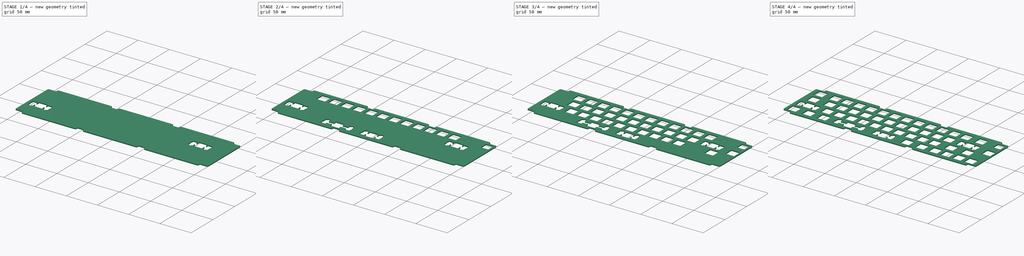
[diagram: build sequence overview — one tinted view per stage of 4, left to right]
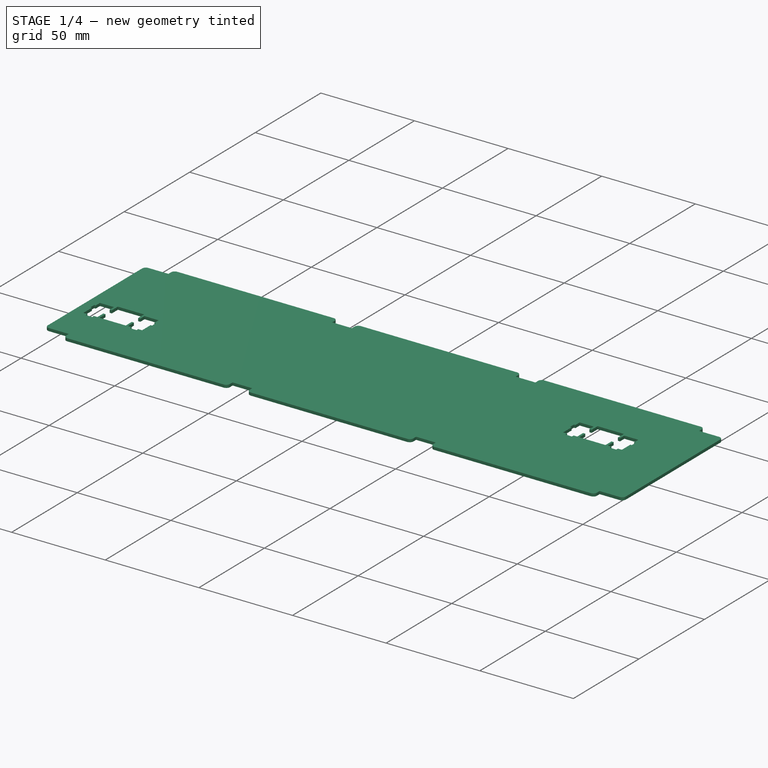
[diagram: stage 1 of 4 — iso view after this stage's code; geometry added in this stage tinted green]
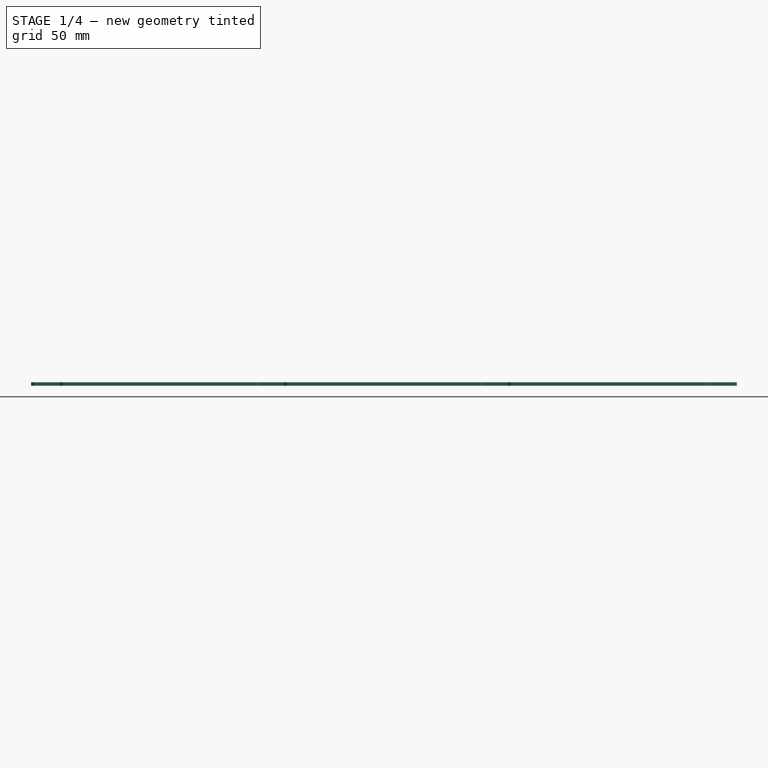
[diagram: stage 1 of 4 — front view after this stage's code; geometry added in this stage tinted green]
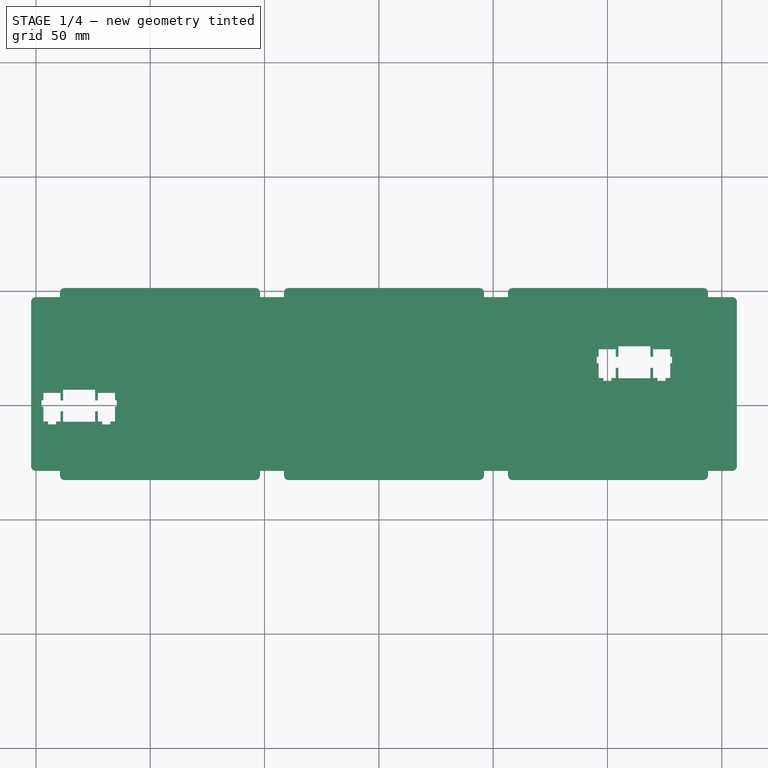
[diagram: stage 1 of 4 — top view after this stage's code; geometry added in this stage tinted green]
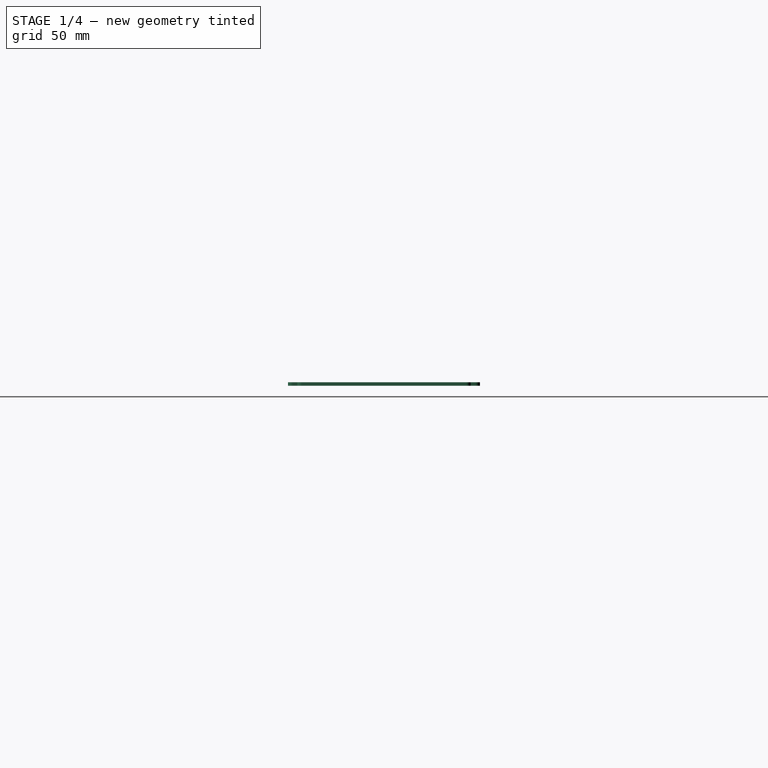
[diagram: stage 1 of 4 — right view after this stage's code; geometry added in this stage tinted green]
FCSTD DOCUMENT  (FreeCAD 0.20R29177 (Git))
Label: ts52k-plate
License: All rights reserved
LicenseURL: http://en.wikipedia.org/wiki/All_rights_reserved
objects: Sketcher::SketchObject×13, PartDesign::Pocket×10, PartDesign::Pad×1, PartDesign::Body×1
note: 36 computed .brp shape members not serialized (recipe doc carries the construction recipe); baked Part::Feature solids carry a one-line shape summary decoded from their .brp

FEATURE [Sketcher::SketchObject] Sketch  label="3u_hole"
  FullyConstrained = false
  MapMode = 5
  Support = -> [XY_Plane]
  sketch-geometry (37):
    g0: LineSegment StartX=-15.7163 StartY=7.54063 StartZ=0 EndX=-16.51 EndY=7.54063 EndZ=0
    g1: LineSegment StartX=-16.51 StartY=7.54063 StartZ=0 EndX=-16.51 EndY=4.68313 EndZ=0
    g2: LineSegment StartX=-16.51 StartY=4.68313 StartZ=0 EndX=-15.7163 EndY=4.68313 EndZ=0
    g3: LineSegment StartX=-15.7163 StartY=4.68313 StartZ=0 EndX=-15.7163 EndY=1.42875 EndZ=0
    g4: LineSegment StartX=-15.7163 StartY=1.42875 StartZ=0 EndX=-8.41375 EndY=1.42875 EndZ=0
    g5: LineSegment StartX=-8.41375 StartY=1.42875 StartZ=0 EndX=-8.41375 EndY=4.60375 EndZ=0
    g6: LineSegment StartX=-8.41375 StartY=4.60375 StartZ=0 EndX=0 EndY=4.60375 EndZ=0
    g7: LineSegment StartX=-4e-16 StartY=4.60375 StartZ=0 EndX=-4e-16 EndY=0 EndZ=0
    g8: LineSegment StartX=-4e-16 StartY=0 StartZ=0 EndX=14 EndY=0 EndZ=0
    g9: LineSegment StartX=14 StartY=0 StartZ=0 EndX=14 EndY=4.60375 EndZ=0
    g10: LineSegment StartX=14 StartY=4.60375 StartZ=0 EndX=22.4137 EndY=4.60375 EndZ=0
    g11: LineSegment StartX=22.4137 StartY=4.60375 StartZ=0 EndX=22.4137 EndY=1.42875 EndZ=0
    g12: LineSegment StartX=22.4137 StartY=1.42875 StartZ=0 EndX=29.7162 EndY=1.42875 EndZ=0
    g13: LineSegment StartX=29.7162 StartY=1.42875 StartZ=0 EndX=29.7162 EndY=4.68313 EndZ=0
    g14: LineSegment StartX=29.7162 StartY=4.68313 StartZ=0 EndX=30.51 EndY=4.68312 EndZ=0
    g15: LineSegment StartX=30.51 StartY=4.68312 StartZ=0 EndX=30.51 EndY=7.54062 EndZ=0
    g16: LineSegment StartX=30.51 StartY=7.54062 StartZ=0 EndX=29.7162 EndY=7.54063 EndZ=0
    g17: LineSegment StartX=29.7162 StartY=7.54063 StartZ=0 EndX=29.7162 EndY=13.8112 EndZ=0
    g18: LineSegment StartX=29.7162 StartY=13.8112 StartZ=0 EndX=27.8112 EndY=13.8112 EndZ=0
    g19: LineSegment StartX=27.8112 StartY=13.8112 StartZ=0 EndX=27.8112 EndY=15.0812 EndZ=0
    g20: LineSegment StartX=27.8112 StartY=15.0812 StartZ=0 EndX=24.3187 EndY=15.0812 EndZ=0
    g21: LineSegment StartX=24.3187 StartY=15.0812 StartZ=0 EndX=24.3187 EndY=13.8112 EndZ=0
    g22: LineSegment StartX=24.3187 StartY=13.8112 StartZ=0 EndX=22.4138 EndY=13.8112 EndZ=0
    g23: LineSegment StartX=22.4138 StartY=13.8112 StartZ=0 EndX=22.4138 EndY=9.36625 EndZ=0
    g24: LineSegment StartX=22.4138 StartY=9.36625 StartZ=0 EndX=14 EndY=9.36625 EndZ=0
    g25: LineSegment StartX=14 StartY=9.36625 StartZ=0 EndX=14 EndY=14 EndZ=0
    g26: LineSegment StartX=14 StartY=14 StartZ=0 EndX=0 EndY=14 EndZ=0
    g27: LineSegment StartX=0 StartY=14 StartZ=0 EndX=0 EndY=9.36625 EndZ=0
    g28: LineSegment StartX=0 StartY=9.36625 StartZ=0 EndX=-8.41375 EndY=9.36625 EndZ=0
    g29: LineSegment StartX=-8.41375 StartY=9.36625 StartZ=0 EndX=-8.41375 EndY=13.8112 EndZ=0
    g30: LineSegment StartX=-8.41375 StartY=13.8112 StartZ=0 EndX=-10.3187 EndY=13.8112 EndZ=0
    g31: LineSegment StartX=-10.3187 StartY=13.8112 StartZ=0 EndX=-10.3187 EndY=15.0812 EndZ=0
    g32: LineSegment StartX=-10.3187 StartY=15.0812 StartZ=0 EndX=-13.8112 EndY=15.0812 EndZ=0
    g33: LineSegment StartX=-13.8112 StartY=15.0812 StartZ=0 EndX=-13.8112 EndY=13.8112 EndZ=0
    g34: LineSegment StartX=-13.8112 StartY=13.8112 StartZ=0 EndX=-15.7163 EndY=13.8112 EndZ=0
    g35: LineSegment StartX=-15.7163 StartY=13.8112 StartZ=0 EndX=-15.7163 EndY=7.54063 EndZ=0
    g36: LineSegment StartX=7 StartY=21.0318 StartZ=0 EndX=7 EndY=-1.86286 EndZ=0
  constraints (92):
    c: Horizontal(g0)
    c: Coincident(g0,g1)
    c: Vertical(g1)
    c: Coincident(g1,g2)
    c: Horizontal(g2)
    c: Coincident(g2,g3)
    c: Vertical(g3)
    c: Coincident(g3,g4)
    c: Horizontal(g4)
    c: Coincident(g4,g5)
    c: Vertical(g5)
    c: Coincident(g5,g6)
    c: Horizontal(g6)
    c: Coincident(g6,g7)
    c: Vertical(g7)
    c: Coincident(g7,g8)
    c: Coincident(g8,g9)
    c: Coincident(g9,g10)
    c: Coincident(g10,g11)
    c: Coincident(g11,g12)
    c: Coincident(g12,g13)
    c: Coincident(g13,g14)
    c: Coincident(g14,g15)
    c: Coincident(g15,g16)
    c: Coincident(g16,g17)
    c: Coincident(g17,g18)
    c: Coincident(g18,g19)
    c: Coincident(g19,g20)
    c: Coincident(g20,g21)
    c: Coincident(g21,g22)
    c: Coincident(g22,g23)
    c: Coincident(g23,g24)
    c: Coincident(g24,g25)
    c: Coincident(g25,g26)
    c: Coincident(g26,g27)
    c: Vertical(g27)
    c: Coincident(g27,g28)
    c: Horizontal(g28)
    c: Coincident(g28,g29)
    c: Vertical(g29)
    c: Coincident(g29,g30)
    c: Horizontal(g30)
    c: Coincident(g30,g31)
    c: Vertical(g31)
    c: Coincident(g31,g32)
    c: Horizontal(g32)
    c: Coincident(g32,g33)
    c: Vertical(g33)
    c: Coincident(g33,g34)
    c: Horizontal(g34)
    c: Coincident(g34,g35)
    c: Coincident(g35,g0)
    c: Vertical(g35)
    c: Vertical(g36)
    c: DistanceX(g-1,g36) = 7
    c: Symmetric(g12,g3,g36)
    c: Symmetric(g34,g17,g36)
    c: Symmetric(g0,g15,g36)
    c: Symmetric(g1,g14,g36)
    c: Symmetric(g18,g33,g36)
    c: Symmetric(g32,g19,g36)
    c: Symmetric(g31,g20,g36)
    c: Symmetric(g30,g21,g36)
    c: Symmetric(g29,g22,g36)
    c: Symmetric(g26,g25,g36)
    c: Symmetric(g27,g24,g36)
    c: Symmetric(g28,g23,g36)
    c: Symmetric(g0,g16,g36)
    c: Symmetric(g2,g13,g36)
    c: Symmetric(g4,g11,g36)
    c: Symmetric(g6,g9,g36)
    c: Symmetric(g7,g8,g36)
    c: DistanceX(g2,g0) = 0
    c: DistanceX(g28,g5) = 0
    c: DistanceX(g6,g27) = 0
    c: DistanceX(g26,g25) = 14
    c: DistanceY(g8,g25) = 14
    c: Symmetric(g10,g5,g36)
    c: DistanceY(g30,g33) = 0
    c: DistanceX(g3,g4) = 7.3025
    c: DistanceX(g5,g6) = 8.41375
    c: DistanceX(g1,g2) = 0.79375
    c: DistanceY(g4,g29) = 12.3825
    c: DistanceY(g30,g31) = 1.27
    c: DistanceX(g32,g31) = 3.4925
    c: DistanceX(g30,g29) = 1.905
    c: DistanceY(g4,g5) = 3.175
    c: DistanceY(g28,g29) = 4.445
    c: DistanceY(g7,g6) = 4.60375
    c: DistanceY(g3,g2) = 3.25438
    c: DistanceY(g1,g0) = 2.8575
    c: DistanceY(g7,g-1) = 0
FEATURE [Sketcher::SketchObject] Sketch001  label="2u_hole"
  FullyConstrained = false
  MapMode = 5
  Support = -> [XY_Plane]
  sketch-geometry (37):
    g0: LineSegment StartX=-8.5725 StartY=7.54063 StartZ=0 EndX=-9.36625 EndY=7.54063 EndZ=0
    g1: LineSegment StartX=-9.36625 StartY=7.54063 StartZ=0 EndX=-9.36625 EndY=4.68313 EndZ=0
    g2: LineSegment StartX=-9.36625 StartY=4.68313 StartZ=0 EndX=-8.5725 EndY=4.68313 EndZ=0
    g3: LineSegment StartX=-8.5725 StartY=4.68313 StartZ=0 EndX=-8.5725 EndY=1.42875 EndZ=0
    g4: LineSegment StartX=-8.5725 StartY=1.42875 StartZ=0 EndX=-1.27 EndY=1.42875 EndZ=0
    g5: LineSegment StartX=-1.27 StartY=1.42875 StartZ=0 EndX=-1.27 EndY=4.60375 EndZ=0
    g6: LineSegment StartX=-1.27 StartY=4.60375 StartZ=0 EndX=-4e-16 EndY=4.60375 EndZ=0
    g7: LineSegment StartX=-4e-16 StartY=4.60375 StartZ=0 EndX=-4e-16 EndY=0 EndZ=0
    g8: LineSegment StartX=-4e-16 StartY=0 StartZ=0 EndX=14 EndY=0 EndZ=0
    g9: LineSegment StartX=14 StartY=0 StartZ=0 EndX=14 EndY=4.60375 EndZ=0
    g10: LineSegment StartX=14 StartY=4.60375 StartZ=0 EndX=15.27 EndY=4.60375 EndZ=0
    g11: LineSegment StartX=15.27 StartY=4.60375 StartZ=0 EndX=15.27 EndY=1.42875 EndZ=0
    g12: LineSegment StartX=15.27 StartY=1.42875 StartZ=0 EndX=22.5725 EndY=1.42875 EndZ=0
    g13: LineSegment StartX=22.5725 StartY=1.42875 StartZ=0 EndX=22.5725 EndY=4.68313 EndZ=0
    g14: LineSegment StartX=22.5725 StartY=4.68313 StartZ=0 EndX=23.3663 EndY=4.68313 EndZ=0
    g15: LineSegment StartX=23.3663 StartY=4.68313 StartZ=0 EndX=23.3663 EndY=7.54063 EndZ=0
    g16: LineSegment StartX=23.3663 StartY=7.54063 StartZ=0 EndX=22.5725 EndY=7.54063 EndZ=0
    g17: LineSegment StartX=22.5725 StartY=7.54063 StartZ=0 EndX=22.5725 EndY=13.8112 EndZ=0
    g18: LineSegment StartX=22.5725 StartY=13.8112 StartZ=0 EndX=20.6675 EndY=13.8112 EndZ=0
    g19: LineSegment StartX=20.6675 StartY=13.8112 StartZ=0 EndX=20.6675 EndY=15.0813 EndZ=0
    g20: LineSegment StartX=20.6675 StartY=15.0813 StartZ=0 EndX=17.175 EndY=15.0813 EndZ=0
    g21: LineSegment StartX=17.175 StartY=15.0813 StartZ=0 EndX=17.175 EndY=13.8112 EndZ=0
    g22: LineSegment StartX=17.175 StartY=13.8112 StartZ=0 EndX=15.27 EndY=13.8112 EndZ=0
    g23: LineSegment StartX=15.27 StartY=13.8112 StartZ=0 EndX=15.27 EndY=9.36625 EndZ=0
    g24: LineSegment StartX=15.27 StartY=9.36625 StartZ=0 EndX=14 EndY=9.36625 EndZ=0
    g25: LineSegment StartX=14 StartY=9.36625 StartZ=0 EndX=14 EndY=14 EndZ=0
    g26: LineSegment StartX=14 StartY=14 StartZ=0 EndX=0 EndY=14 EndZ=0
    g27: LineSegment StartX=0 StartY=14 StartZ=0 EndX=0 EndY=9.36625 EndZ=0
    g28: LineSegment StartX=0 StartY=9.36625 StartZ=0 EndX=-1.27 EndY=9.36625 EndZ=0
    g29: LineSegment StartX=-1.27 StartY=9.36625 StartZ=0 EndX=-1.27 EndY=13.8112 EndZ=0
    g30: LineSegment StartX=-1.27 StartY=13.8112 StartZ=0 EndX=-3.175 EndY=13.8112 EndZ=0
    g31: LineSegment StartX=-3.175 StartY=13.8112 StartZ=0 EndX=-3.175 EndY=15.0813 EndZ=0
    g32: LineSegment StartX=-3.175 StartY=15.0813 StartZ=0 EndX=-6.6675 EndY=15.0813 EndZ=0
    g33: LineSegment StartX=-6.6675 StartY=15.0813 StartZ=0 EndX=-6.6675 EndY=13.8112 EndZ=0
    g34: LineSegment StartX=-6.6675 StartY=13.8112 StartZ=0 EndX=-8.5725 EndY=13.8112 EndZ=0
    g35: LineSegment StartX=-8.5725 StartY=13.8112 StartZ=0 EndX=-8.5725 EndY=7.54063 EndZ=0
    g36: LineSegment StartX=7 StartY=21.0339 StartZ=0 EndX=7 EndY=-1.86497 EndZ=0
  constraints (92):
    c: Horizontal(g0)
    c: Coincident(g0,g1)
    c: Vertical(g1)
    c: Coincident(g1,g2)
    c: Horizontal(g2)
    c: Coincident(g2,g3)
    c: Vertical(g3)
    c: Coincident(g3,g4)
    c: Horizontal(g4)
    c: Coincident(g4,g5)
    c: Vertical(g5)
    c: Coincident(g5,g6)
    c: Horizontal(g6)
    c: Coincident(g6,g7)
    c: Vertical(g7)
    c: Coincident(g7,g8)
    c: Coincident(g8,g9)
    c: Coincident(g9,g10)
    c: Coincident(g10,g11)
    c: Coincident(g11,g12)
    c: Coincident(g12,g13)
    c: Coincident(g13,g14)
    c: Coincident(g14,g15)
    c: Coincident(g15,g16)
    c: Coincident(g16,g17)
    c: Coincident(g17,g18)
    c: Coincident(g18,g19)
    c: Coincident(g19,g20)
    c: Coincident(g20,g21)
    c: Coincident(g21,g22)
    c: Coincident(g22,g23)
    c: Coincident(g23,g24)
    c: Coincident(g24,g25)
    c: Coincident(g25,g26)
    c: Coincident(g26,g27)
    c: Vertical(g27)
    c: Coincident(g27,g28)
    c: Horizontal(g28)
    c: Coincident(g28,g29)
    c: Vertical(g29)
    c: Coincident(g29,g30)
    c: Horizontal(g30)
    c: Coincident(g30,g31)
    c: Vertical(g31)
    c: Coincident(g31,g32)
    c: Horizontal(g32)
    c: Coincident(g32,g33)
    c: Vertical(g33)
    c: Coincident(g33,g34)
    c: Horizontal(g34)
    c: Coincident(g34,g35)
    c: Coincident(g35,g0)
    c: Vertical(g35)
    c: Vertical(g36)
    c: DistanceX(g-1,g36) = 7
    c: Symmetric(g12,g3,g36)
    c: Symmetric(g34,g17,g36)
    c: Symmetric(g0,g15,g36)
    c: Symmetric(g1,g14,g36)
    c: Symmetric(g18,g33,g36)
    c: Symmetric(g32,g19,g36)
    c: Symmetric(g31,g20,g36)
    c: Symmetric(g30,g21,g36)
    c: Symmetric(g29,g22,g36)
    c: Symmetric(g26,g25,g36)
    c: Symmetric(g27,g24,g36)
    c: Symmetric(g28,g23,g36)
    c: Symmetric(g0,g16,g36)
    c: Symmetric(g2,g13,g36)
    c: Symmetric(g4,g11,g36)
    c: Symmetric(g6,g9,g36)
    c: Symmetric(g7,g8,g36)
    c: DistanceX(g2,g0) = 0
    c: DistanceX(g28,g5) = 0
    c: DistanceX(g6,g27) = 0
    c: DistanceX(g26,g25) = 14
    c: DistanceY(g8,g25) = 14
    c: Symmetric(g10,g5,g36)
    c: DistanceY(g30,g33) = 0
    c: DistanceX(g3,g4) = 7.3025
    c: DistanceX(g1,g2) = 0.79375
    c: DistanceY(g4,g29) = 12.3825
    c: DistanceY(g30,g31) = 1.27
    c: DistanceX(g32,g31) = 3.4925
    c: DistanceX(g30,g29) = 1.905
    c: DistanceY(g4,g5) = 3.175
    c: DistanceY(g28,g29) = 4.445
    c: DistanceY(g7,g6) = 4.60375
    c: DistanceX(g5,g6) = 1.27
    c: DistanceY(g1,g0) = 2.8575
    c: DistanceY(g3,g2) = 3.25438
    c: DistanceY(g7,g-1) = 0
FEATURE [Sketcher::SketchObject] Sketch002  label="plate_outline"
  FullyConstrained = true
  MapMode = 5
  Support = -> [XY_Plane]
  sketch-geometry (44):
    g0: LineSegment StartX=306.637 StartY=-4.65 StartZ=0 EndX=306.637 EndY=-76.6 EndZ=0
    g1: LineSegment StartX=-2.125 StartY=-76.6 StartZ=0 EndX=-2.125 EndY=-4.65 EndZ=0
    g2: ArcOfCircle CenterX=-0.125 CenterY=-4.65 CenterZ=0 NormalX=0 NormalY=0 NormalZ=1 AngleXU=0 Radius=2 StartAngle=1.5708 EndAngle=3.14159
    g3: ArcOfCircle CenterX=304.637 CenterY=-4.65 CenterZ=0 NormalX=0 NormalY=0 NormalZ=1 AngleXU=0 Radius=2 StartAngle=0 EndAngle=1.5708
    g4: ArcOfCircle CenterX=304.637 CenterY=-76.6 CenterZ=0 NormalX=0 NormalY=0 NormalZ=1 AngleXU=0 Radius=2 StartAngle=4.71239 EndAngle=6.28319
    g5: ArcOfCircle CenterX=-0.125 CenterY=-76.6 CenterZ=0 NormalX=0 NormalY=0 NormalZ=1 AngleXU=0 Radius=2 StartAngle=3.14159 EndAngle=4.71239
    g6: LineSegment StartX=12.506 StartY=1.35 StartZ=0 EndX=96.006 EndY=1.35 EndZ=0
    g7: LineSegment StartX=98.006 StartY=-0.65 StartZ=0 EndX=98.006 EndY=-2.65 EndZ=0
    g8: LineSegment StartX=10.506 StartY=-2.65 StartZ=0 EndX=10.506 EndY=-0.65 EndZ=0
    g9: ArcOfCircle CenterX=12.506 CenterY=-0.65 CenterZ=0 NormalX=0 NormalY=0 NormalZ=1 AngleXU=0 Radius=2 StartAngle=1.5708 EndAngle=3.14159
    g10: ArcOfCircle CenterX=96.006 CenterY=-0.65 CenterZ=0 NormalX=0 NormalY=0 NormalZ=1 AngleXU=0 Radius=2 StartAngle=0 EndAngle=1.5708
    g11: LineSegment StartX=108.506 StartY=-2.65 StartZ=0 EndX=108.506 EndY=-0.65 EndZ=0
    g12: ArcOfCircle CenterX=110.506 CenterY=-0.65 CenterZ=0 NormalX=0 NormalY=0 NormalZ=1 AngleXU=0 Radius=2 StartAngle=1.5708 EndAngle=3.14159
    g13: LineSegment StartX=10.506 StartY=-2.65 StartZ=0 EndX=-0.125 EndY=-2.65 EndZ=0
    g14: LineSegment StartX=98.006 StartY=-78.6 StartZ=0 EndX=98.006 EndY=-80.6 EndZ=0
    g15: LineSegment StartX=96.006 StartY=-82.6 StartZ=0 EndX=12.506 EndY=-82.6 EndZ=0
    g16: LineSegment StartX=10.506 StartY=-80.6 StartZ=0 EndX=10.506 EndY=-78.6 EndZ=0
    g17: ArcOfCircle CenterX=12.506 CenterY=-80.6 CenterZ=0 NormalX=0 NormalY=0 NormalZ=1 AngleXU=0 Radius=2 StartAngle=3.14159 EndAngle=4.71239
    g18: ArcOfCircle CenterX=96.006 CenterY=-80.6 CenterZ=0 NormalX=0 NormalY=0 NormalZ=1 AngleXU=0 Radius=2 StartAngle=4.71239 EndAngle=6.28319
    g19: LineSegment StartX=196.006 StartY=-0.65 StartZ=0 EndX=196.006 EndY=-2.65 EndZ=0
    g20: ArcOfCircle CenterX=194.006 CenterY=-0.65 CenterZ=0 NormalX=0 NormalY=0 NormalZ=1 AngleXU=0 Radius=2 StartAngle=0 EndAngle=1.5708
    g21: LineSegment StartX=208.506 StartY=1.35 StartZ=0 EndX=292.006 EndY=1.35 EndZ=0
    g22: LineSegment StartX=294.006 StartY=-0.65 StartZ=0 EndX=294.006 EndY=-2.65 EndZ=0
    g23: LineSegment StartX=206.506 StartY=-2.65 StartZ=0 EndX=206.506 EndY=-0.65 EndZ=0
    g24: ArcOfCircle CenterX=208.506 CenterY=-0.65 CenterZ=0 NormalX=0 NormalY=0 NormalZ=1 AngleXU=0 Radius=2 StartAngle=1.5708 EndAngle=3.14159
    g25: ArcOfCircle CenterX=292.006 CenterY=-0.65 CenterZ=0 NormalX=0 NormalY=0 NormalZ=1 AngleXU=0 Radius=2 StartAngle=0 EndAngle=1.5708
    g26: LineSegment StartX=194.006 StartY=-82.6 StartZ=0 EndX=110.506 EndY=-82.6 EndZ=0
    g27: LineSegment StartX=108.506 StartY=-80.6 StartZ=0 EndX=108.506 EndY=-78.6 EndZ=0
    g28: ArcOfCircle CenterX=110.506 CenterY=-80.6 CenterZ=0 NormalX=0 NormalY=0 NormalZ=1 AngleXU=0 Radius=2 StartAngle=3.14159 EndAngle=4.71239
    g29: LineSegment StartX=196.006 StartY=-78.6 StartZ=0 EndX=196.006 EndY=-80.6 EndZ=0
    g30: ArcOfCircle CenterX=194.006 CenterY=-80.6 CenterZ=0 NormalX=0 NormalY=0 NormalZ=1 AngleXU=0 Radius=2 StartAngle=4.71239 EndAngle=6.28319
    g31: LineSegment StartX=294.006 StartY=-78.6 StartZ=0 EndX=294.006 EndY=-80.6 EndZ=0
    g32: LineSegment StartX=292.006 StartY=-82.6 StartZ=0 EndX=208.506 EndY=-82.6 EndZ=0
    g33: LineSegment StartX=206.506 StartY=-80.6 StartZ=0 EndX=206.506 EndY=-78.6 EndZ=0
    g34: ArcOfCircle CenterX=208.506 CenterY=-80.6 CenterZ=0 NormalX=0 NormalY=0 NormalZ=1 AngleXU=0 Radius=2 StartAngle=3.14159 EndAngle=4.71239
    g35: ArcOfCircle CenterX=292.006 CenterY=-80.6 CenterZ=0 NormalX=0 NormalY=0 NormalZ=1 AngleXU=0 Radius=2 StartAngle=4.71239 EndAngle=6.28319
    g36: LineSegment StartX=10.506 StartY=-78.6 StartZ=0 EndX=-0.125 EndY=-78.6 EndZ=0
    g37: LineSegment StartX=108.506 StartY=-78.6 StartZ=0 EndX=98.006 EndY=-78.6 EndZ=0
    g38: LineSegment StartX=108.506 StartY=-2.65 StartZ=0 EndX=98.006 EndY=-2.65 EndZ=0
    g39: LineSegment StartX=206.506 StartY=-78.6 StartZ=0 EndX=196.006 EndY=-78.6 EndZ=0
    g40: LineSegment StartX=304.637 StartY=-78.6 StartZ=0 EndX=294.006 EndY=-78.6 EndZ=0
    g41: LineSegment StartX=206.506 StartY=-2.65 StartZ=0 EndX=196.006 EndY=-2.65 EndZ=0
    g42: LineSegment StartX=304.637 StartY=-2.65 StartZ=0 EndX=294.006 EndY=-2.65 EndZ=0
    g43: LineSegment StartX=110.506 StartY=1.35 StartZ=0 EndX=194.006 EndY=1.35 EndZ=0
  constraints (148):
    c: Vertical(g0)
    c: Vertical(g1)
    c: Radius(g2) = 2
    c: Radius(g5) = 2
    c: Radius(g4) = 2
    c: Radius(g3) = 2
    c: DistanceX(g1,g0) = 308.762
    c: DistanceX(g1,g-1) = 2.125
    c: Horizontal(g6)
    c: Vertical(g7)
    c: Vertical(g8)
    c: DistanceY(g8,g6) = 4
    c: Radius(g9) = 2
    c: Radius(g10) = 2
    c: DistanceY(g7,g8) = 0
    c: DistanceX(g8,g7) = 87.5
    c: DistanceX(g2,g2) = 0
    c: DistanceY(g2,g1) = 0
    c: DistanceY(g1,g5) = 0
    c: DistanceY(g0,g4) = 0
    c: DistanceY(g0,g3) = 0
    c: DistanceX(g3,g3) = 0
    c: DistanceX(g4,g4) = 0
    c: DistanceX(g5,g5) = 0
    c: Coincident(g1,g5)
    c: Coincident(g1,g2)
    c: Coincident(g3,g0)
    c: Coincident(g4,g0)
    c: Coincident(g6,g9)
    c: Coincident(g10,g6)
    c: Coincident(g7,g10)
    c: Coincident(g9,g8)
    c: DistanceX(g9,g6) = 0
    c: DistanceX(g6,g10) = 0
    c: DistanceY(g10,g7) = 0
    c: DistanceY(g9,g8) = 0
    c: Vertical(g11)
    c: DistanceY(g11,g12) = 4
    c: Coincident(g12,g11)
    c: DistanceX(g12,g12) = 0
    c: DistanceY(g12,g11) = 0
    c: Radius(g12) = 2
    c: Coincident(g13,g8)
    c: Coincident(g13,g2)
    c: Horizontal(g13)
    c: DistanceX(g1,g8) = 12.631
    c: Horizontal(g15)
    c: Vertical(g14)
    c: Vertical(g16)
    c: Coincident(g18,g14)
    c: Coincident(g15,g18)
    c: Coincident(g17,g15)
    c: Coincident(g16,g17)
    c: DistanceY(g17,g16) = 0
    c: DistanceY(g18,g14) = 0
    c: DistanceX(g15,g18) = 0
    c: DistanceX(g15,g17) = 0
    c: Radius(g17) = 2
    c: Radius(g18) = 2
    c: DistanceY(g15,g14) = 4
    c: Vertical(g19)
    c: Coincident(g19,g20)
    c: DistanceX(g20,g20) = 0
    c: DistanceY(g20,g19) = 0
    c: Radius(g20) = 2
    c: Horizontal(g21)
    c: Vertical(g22)
    c: Vertical(g23)
    c: DistanceY(g23,g21) = 4
    c: DistanceY(g22,g23) = 0
    c: DistanceX(g23,g22) = 87.5
    c: Coincident(g21,g24)
    c: Coincident(g25,g21)
    c: Coincident(g22,g25)
    c: Coincident(g24,g23)
    c: DistanceX(g24,g21) = 0
    c: DistanceX(g21,g25) = 0
    c: DistanceY(g25,g22) = 0
    c: DistanceY(g24,g23) = 0
    c: Radius(g24) = 2
    c: Radius(g25) = 2
    c: Horizontal(g26)
    c: Vertical(g27)
    c: Coincident(g28,g26)
    c: Coincident(g27,g28)
    c: DistanceY(g28,g27) = 0
    c: DistanceX(g26,g28) = 0
    c: Radius(g28) = 2
    c: Vertical(g29)
    c: Coincident(g30,g29)
    c: DistanceY(g30,g29) = 0
    c: DistanceX(g30,g30) = 0
    c: DistanceY(g30,g29) = 4
    c: Radius(g30) = 2
    c: Horizontal(g32)
    c: Vertical(g31)
    c: Vertical(g33)
    c: Coincident(g35,g31)
    c: Coincident(g32,g35)
    c: Coincident(g34,g32)
    c: Coincident(g33,g34)
    c: DistanceY(g34,g33) = 0
    c: DistanceY(g35,g31) = 0
    c: DistanceX(g32,g35) = 0
    c: DistanceX(g32,g34) = 0
    c: DistanceY(g32,g31) = 4
    c: Radius(g34) = 2
    c: Radius(g35) = 2
    c: DistanceY(g14,g16) = 0
    c: DistanceY(g5,g2) = 75.95
    c: Coincident(g36,g16)
    c: Coincident(g36,g5)
    c: Horizontal(g36)
    c: DistanceY(g31,g33) = 0
    c: Coincident(g37,g27)
    c: Coincident(g37,g14)
    c: Horizontal(g37)
    c: Coincident(g38,g11)
    c: Horizontal(g38)
    c: DistanceX(g38,g11) = 10.5
    c: Coincident(g39,g33)
    c: Coincident(g39,g29)
    c: Horizontal(g39)
    c: Coincident(g40,g4)
    c: Coincident(g40,g31)
    c: Horizontal(g40)
    c: Coincident(g7,g38)
    c: DistanceX(g19,g23) = 10.5
    c: Coincident(g41,g23)
    c: Coincident(g41,g19)
    c: Horizontal(g41)
    c: Coincident(g42,g3)
    c: Coincident(g42,g22)
    c: Horizontal(g42)
    c: Coincident(g43,g12)
    c: Coincident(g43,g20)
    c: Horizontal(g43)
    c: PointOnObject(g26,g15)
    c: Coincident(g26,g30)
    c: DistanceY(g2,g-1) = 2.65
    c: PointOnObject(g21,g43)
    c: DistanceX(g11,g19) = 87.5
    c: PointOnObject(g14,g7)
    c: PointOnObject(g11,g27)
    c: PointOnObject(g29,g19)
    c: PointOnObject(g33,g23)
    c: PointOnObject(g31,g22)
    c: PointOnObject(g16,g8)
FEATURE [Sketcher::SketchObject] Sketch050  label="hole_enter"
  AttachmentOffset = pos=(268.794,-24.1,0) rot=(0,0,1;3.14159rad)
  FullyConstrained = false
  MapMode = 5
  Placement = pos=(268.794,-24.1,0) rot=(0,0,1;3.14159rad)
  Support = -> [XY_Plane]
  sketch-geometry (37):
    g0: LineSegment StartX=-8.66775 StartY=7.44538 StartZ=0 EndX=-9.4615 EndY=7.44538 EndZ=0
    g1: LineSegment StartX=-9.4615 StartY=7.44538 StartZ=0 EndX=-9.4615 EndY=4.58788 EndZ=0
    g2: LineSegment StartX=-9.4615 StartY=4.58788 StartZ=0 EndX=-8.66775 EndY=4.58788 EndZ=0
    g3: LineSegment StartX=-8.66775 StartY=4.58788 StartZ=0 EndX=-8.66775 EndY=1.3335 EndZ=0
    g4: LineSegment StartX=-8.66775 StartY=1.3335 StartZ=0 EndX=-1.17475 EndY=1.3335 EndZ=0
    g5: LineSegment StartX=-1.17475 StartY=1.3335 StartZ=0 EndX=-1.17475 EndY=4.60375 EndZ=0
    g6: LineSegment StartX=-1.17475 StartY=4.60375 StartZ=0 EndX=4e-16 EndY=4.60375 EndZ=0
    g7: LineSegment StartX=4e-16 StartY=4.60375 StartZ=0 EndX=4e-16 EndY=0 EndZ=0
    g8: LineSegment StartX=4e-16 StartY=0 StartZ=0 EndX=14 EndY=0 EndZ=0
    g9: LineSegment StartX=14 StartY=0 StartZ=0 EndX=14 EndY=4.60375 EndZ=0
    g10: LineSegment StartX=14 StartY=4.60375 StartZ=0 EndX=15.1747 EndY=4.60375 EndZ=0
    g11: LineSegment StartX=15.1747 StartY=4.60375 StartZ=0 EndX=15.1747 EndY=1.3335 EndZ=0
    g12: LineSegment StartX=15.1747 StartY=1.3335 StartZ=0 EndX=22.6677 EndY=1.3335 EndZ=0
    g13: LineSegment StartX=22.6677 StartY=1.3335 StartZ=0 EndX=22.6677 EndY=4.58788 EndZ=0
    g14: LineSegment StartX=22.6677 StartY=4.58788 StartZ=0 EndX=23.4615 EndY=4.58788 EndZ=0
    g15: LineSegment StartX=23.4615 StartY=4.58788 StartZ=0 EndX=23.4615 EndY=7.44538 EndZ=0
    g16: LineSegment StartX=23.4615 StartY=7.44538 StartZ=0 EndX=22.6677 EndY=7.44538 EndZ=0
    g17: LineSegment StartX=22.6677 StartY=7.44538 StartZ=0 EndX=22.6677 EndY=13.9065 EndZ=0
    g18: LineSegment StartX=22.6677 StartY=13.9065 StartZ=0 EndX=20.5723 EndY=13.9065 EndZ=0
    g19: LineSegment StartX=20.5723 StartY=13.9065 StartZ=0 EndX=20.5723 EndY=15.1765 EndZ=0
    g20: LineSegment StartX=20.5723 StartY=15.1765 StartZ=0 EndX=17.0798 EndY=15.1765 EndZ=0
    g21: LineSegment StartX=17.0798 StartY=15.1765 StartZ=0 EndX=17.0798 EndY=13.9065 EndZ=0
    g22: LineSegment StartX=17.0798 StartY=13.9065 StartZ=0 EndX=15.1747 EndY=13.9065 EndZ=0
    g23: LineSegment StartX=15.1747 StartY=13.9065 StartZ=0 EndX=15.1747 EndY=9.4615 EndZ=0
    g24: LineSegment StartX=15.1747 StartY=9.4615 StartZ=0 EndX=14 EndY=9.4615 EndZ=0
    g25: LineSegment StartX=14 StartY=9.4615 StartZ=0 EndX=14 EndY=14 EndZ=0
    g26: LineSegment StartX=14 StartY=14 StartZ=0 EndX=0 EndY=14 EndZ=0
    g27: LineSegment StartX=0 StartY=14 StartZ=0 EndX=0 EndY=9.4615 EndZ=0
    g28: LineSegment StartX=0 StartY=9.4615 StartZ=0 EndX=-1.17475 EndY=9.4615 EndZ=0
    g29: LineSegment StartX=-1.17475 StartY=9.4615 StartZ=0 EndX=-1.17475 EndY=13.9065 EndZ=0
    g30: LineSegment StartX=-1.17475 StartY=13.9065 StartZ=0 EndX=-3.07975 EndY=13.9065 EndZ=0
    g31: LineSegment StartX=-3.07975 StartY=13.9065 StartZ=0 EndX=-3.07975 EndY=15.1765 EndZ=0
    g32: LineSegment StartX=-3.07975 StartY=15.1765 StartZ=0 EndX=-6.57225 EndY=15.1765 EndZ=0
    g33: LineSegment StartX=-6.57225 StartY=15.1765 StartZ=0 EndX=-6.57225 EndY=13.9065 EndZ=0
    g34: LineSegment StartX=-6.57225 StartY=13.9065 StartZ=0 EndX=-8.66775 EndY=13.9065 EndZ=0
    g35: LineSegment StartX=-8.66775 StartY=13.9065 StartZ=0 EndX=-8.66775 EndY=7.44538 EndZ=0
    g36: LineSegment StartX=7 StartY=21.0339 StartZ=0 EndX=7 EndY=-1.86497 EndZ=0
  constraints (92):
    c: Horizontal(g0)
    c: Coincident(g0,g1)
    c: Vertical(g1)
    c: Coincident(g1,g2)
    c: Horizontal(g2)
    c: Coincident(g2,g3)
    c: Vertical(g3)
    c: Coincident(g3,g4)
    c: Horizontal(g4)
    c: Coincident(g4,g5)
    c: Vertical(g5)
    c: Coincident(g5,g6)
    c: Horizontal(g6)
    c: Coincident(g6,g7)
    c: Vertical(g7)
    c: Coincident(g7,g8)
    c: Coincident(g8,g9)
    c: Coincident(g9,g10)
    c: Coincident(g10,g11)
    c: Coincident(g11,g12)
    c: Coincident(g12,g13)
    c: Coincident(g13,g14)
    c: Coincident(g14,g15)
    c: Coincident(g15,g16)
    c: Coincident(g16,g17)
    c: Coincident(g17,g18)
    c: Coincident(g18,g19)
    c: Coincident(g19,g20)
    c: Coincident(g20,g21)
    c: Coincident(g21,g22)
    c: Coincident(g22,g23)
    c: Coincident(g23,g24)
    c: Coincident(g24,g25)
    c: Coincident(g25,g26)
    c: Coincident(g26,g27)
    c: Vertical(g27)
    c: Coincident(g27,g28)
    c: Horizontal(g28)
    c: Coincident(g28,g29)
    c: Vertical(g29)
    c: Coincident(g29,g30)
    c: Horizontal(g30)
    c: Coincident(g30,g31)
    c: Vertical(g31)
    c: Coincident(g31,g32)
    c: Horizontal(g32)
    c: Coincident(g32,g33)
    c: Vertical(g33)
    c: Coincident(g33,g34)
    c: Horizontal(g34)
    c: Coincident(g34,g35)
    c: Coincident(g35,g0)
    c: Vertical(g35)
    c: Vertical(g36)
    c: DistanceX(g-1,g36) = 7
    c: Symmetric(g12,g3,g36)
    c: Symmetric(g34,g17,g36)
    c: Symmetric(g0,g15,g36)
    c: Symmetric(g1,g14,g36)
    c: Symmetric(g18,g33,g36)
    c: Symmetric(g32,g19,g36)
    c: Symmetric(g31,g20,g36)
    c: Symmetric(g30,g21,g36)
    c: Symmetric(g29,g22,g36)
    c: Symmetric(g26,g25,g36)
    c: Symmetric(g27,g24,g36)
    c: Symmetric(g28,g23,g36)
    c: Symmetric(g0,g16,g36)
    c: Symmetric(g2,g13,g36)
    c: Symmetric(g4,g11,g36)
    c: Symmetric(g6,g9,g36)
    c: Symmetric(g7,g8,g36)
    c: DistanceX(g2,g0) = 0
    c: DistanceX(g28,g5) = 0
    c: DistanceX(g6,g27) = 0
    c: DistanceX(g26,g25) = 14
    c: DistanceY(g8,g25) = 14
    c: Symmetric(g10,g5,g36)
    c: DistanceY(g30,g33) = 0
    c: DistanceX(g3,g4) = 7.493
    c: DistanceX(g1,g2) = 0.79375
    c: DistanceY(g4,g29) = 12.573
    c: DistanceY(g30,g31) = 1.27
    c: DistanceX(g32,g31) = 3.4925
    c: DistanceX(g30,g29) = 1.905
    c: DistanceY(g4,g5) = 3.27025
    c: DistanceY(g28,g29) = 4.445
    c: DistanceY(g7,g6) = 4.60375
    c: DistanceX(g5,g6) = 1.17475
    c: DistanceY(g1,g0) = 2.8575
    c: DistanceY(g3,g2) = 3.25438
    c: DistanceY(g7,g-1) = 0
FEATURE [Sketcher::SketchObject] Sketch052  label="hole_lshift"
  AttachmentOffset = pos=(25.9063,-43.15,0) rot=(0,0,1;3.14159rad)
  FullyConstrained = false
  MapMode = 5
  Placement = pos=(25.9063,-43.15,0) rot=(0,0,1;3.14159rad)
  Support = -> [XY_Plane]
  sketch-geometry (37):
    g0: LineSegment StartX=-8.66775 StartY=7.44538 StartZ=0 EndX=-9.4615 EndY=7.44538 EndZ=0
    g1: LineSegment StartX=-9.4615 StartY=7.44538 StartZ=0 EndX=-9.4615 EndY=4.58788 EndZ=0
    g2: LineSegment StartX=-9.4615 StartY=4.58788 StartZ=0 EndX=-8.66775 EndY=4.58788 EndZ=0
    g3: LineSegment StartX=-8.66775 StartY=4.58788 StartZ=0 EndX=-8.66775 EndY=1.3335 EndZ=0
    g4: LineSegment StartX=-8.66775 StartY=1.3335 StartZ=0 EndX=-1.17475 EndY=1.3335 EndZ=0
    g5: LineSegment StartX=-1.17475 StartY=1.3335 StartZ=0 EndX=-1.17475 EndY=4.60375 EndZ=0
    g6: LineSegment StartX=-1.17475 StartY=4.60375 StartZ=0 EndX=-1.6e-15 EndY=4.60375 EndZ=0
    g7: LineSegment StartX=-1.6e-15 StartY=4.60375 StartZ=0 EndX=-1.6e-15 EndY=0 EndZ=0
    g8: LineSegment StartX=-1.6e-15 StartY=0 StartZ=0 EndX=14 EndY=0 EndZ=0
    g9: LineSegment StartX=14 StartY=0 StartZ=0 EndX=14 EndY=4.60375 EndZ=0
    g10: LineSegment StartX=14 StartY=4.60375 StartZ=0 EndX=15.1748 EndY=4.60375 EndZ=0
    g11: LineSegment StartX=15.1748 StartY=4.60375 StartZ=0 EndX=15.1748 EndY=1.3335 EndZ=0
    g12: LineSegment StartX=15.1748 StartY=1.3335 StartZ=0 EndX=22.6678 EndY=1.3335 EndZ=0
    g13: LineSegment StartX=22.6678 StartY=1.3335 StartZ=0 EndX=22.6678 EndY=4.58788 EndZ=0
    g14: LineSegment StartX=22.6678 StartY=4.58788 StartZ=0 EndX=23.4615 EndY=4.58787 EndZ=0
    g15: LineSegment StartX=23.4615 StartY=4.58787 StartZ=0 EndX=23.4615 EndY=7.44537 EndZ=0
    g16: LineSegment StartX=23.4615 StartY=7.44537 StartZ=0 EndX=22.6678 EndY=7.44538 EndZ=0
    g17: LineSegment StartX=22.6678 StartY=7.44538 StartZ=0 EndX=22.6678 EndY=13.9065 EndZ=0
    g18: LineSegment StartX=22.6678 StartY=13.9065 StartZ=0 EndX=20.5723 EndY=13.9065 EndZ=0
    g19: LineSegment StartX=20.5723 StartY=13.9065 StartZ=0 EndX=20.5723 EndY=15.1765 EndZ=0
    g20: LineSegment StartX=20.5723 StartY=15.1765 StartZ=0 EndX=17.0798 EndY=15.1765 EndZ=0
    g21: LineSegment StartX=17.0798 StartY=15.1765 StartZ=0 EndX=17.0798 EndY=13.9065 EndZ=0
    g22: LineSegment StartX=17.0798 StartY=13.9065 StartZ=0 EndX=15.1748 EndY=13.9065 EndZ=0
    g23: LineSegment StartX=15.1748 StartY=13.9065 StartZ=0 EndX=15.1748 EndY=9.4615 EndZ=0
    g24: LineSegment StartX=15.1748 StartY=9.4615 StartZ=0 EndX=14 EndY=9.4615 EndZ=0
    g25: LineSegment StartX=14 StartY=9.4615 StartZ=0 EndX=14 EndY=14 EndZ=0
    g26: LineSegment StartX=14 StartY=14 StartZ=0 EndX=-1.8e-15 EndY=14 EndZ=0
    g27: LineSegment StartX=-1.8e-15 StartY=14 StartZ=0 EndX=-1.8e-15 EndY=9.4615 EndZ=0
    g28: LineSegment StartX=-1.8e-15 StartY=9.4615 StartZ=0 EndX=-1.17475 EndY=9.4615 EndZ=0
    g29: LineSegment StartX=-1.17475 StartY=9.4615 StartZ=0 EndX=-1.17475 EndY=13.9065 EndZ=0
    g30: LineSegment StartX=-1.17475 StartY=13.9065 StartZ=0 EndX=-3.07975 EndY=13.9065 EndZ=0
    g31: LineSegment StartX=-3.07975 StartY=13.9065 StartZ=0 EndX=-3.07975 EndY=15.1765 EndZ=0
    g32: LineSegment StartX=-3.07975 StartY=15.1765 StartZ=0 EndX=-6.57225 EndY=15.1765 EndZ=0
    g33: LineSegment StartX=-6.57225 StartY=15.1765 StartZ=0 EndX=-6.57225 EndY=13.9065 EndZ=0
    g34: LineSegment StartX=-6.57225 StartY=13.9065 StartZ=0 EndX=-8.66775 EndY=13.9065 EndZ=0
    g35: LineSegment StartX=-8.66775 StartY=13.9065 StartZ=0 EndX=-8.66775 EndY=7.44538 EndZ=0
    g36: LineSegment StartX=7 StartY=21.0339 StartZ=0 EndX=7 EndY=-1.86497 EndZ=0
  constraints (92):
    c: Horizontal(g0)
    c: Coincident(g0,g1)
    c: Vertical(g1)
    c: Coincident(g1,g2)
    c: Horizontal(g2)
    c: Coincident(g2,g3)
    c: Vertical(g3)
    c: Coincident(g3,g4)
    c: Horizontal(g4)
    c: Coincident(g4,g5)
    c: Vertical(g5)
    c: Coincident(g5,g6)
    c: Horizontal(g6)
    c: Coincident(g6,g7)
    c: Vertical(g7)
    c: Coincident(g7,g8)
    c: Coincident(g8,g9)
    c: Coincident(g9,g10)
    c: Coincident(g10,g11)
    c: Coincident(g11,g12)
    c: Coincident(g12,g13)
    c: Coincident(g13,g14)
    c: Coincident(g14,g15)
    c: Coincident(g15,g16)
    c: Coincident(g16,g17)
    c: Coincident(g17,g18)
    c: Coincident(g18,g19)
    c: Coincident(g19,g20)
    c: Coincident(g20,g21)
    c: Coincident(g21,g22)
    c: Coincident(g22,g23)
    c: Coincident(g23,g24)
    c: Coincident(g24,g25)
    c: Coincident(g25,g26)
    c: Coincident(g26,g27)
    c: Vertical(g27)
    c: Coincident(g27,g28)
    c: Horizontal(g28)
    c: Coincident(g28,g29)
    c: Vertical(g29)
    c: Coincident(g29,g30)
    c: Horizontal(g30)
    c: Coincident(g30,g31)
    c: Vertical(g31)
    c: Coincident(g31,g32)
    c: Horizontal(g32)
    c: Coincident(g32,g33)
    c: Vertical(g33)
    c: Coincident(g33,g34)
    c: Horizontal(g34)
    c: Coincident(g34,g35)
    c: Coincident(g35,g0)
    c: Vertical(g35)
    c: Vertical(g36)
    c: DistanceX(g-1,g36) = 7
    c: Symmetric(g12,g3,g36)
    c: Symmetric(g34,g17,g36)
    c: Symmetric(g0,g15,g36)
    c: Symmetric(g1,g14,g36)
    c: Symmetric(g18,g33,g36)
    c: Symmetric(g32,g19,g36)
    c: Symmetric(g31,g20,g36)
    c: Symmetric(g30,g21,g36)
    c: Symmetric(g29,g22,g36)
    c: Symmetric(g26,g25,g36)
    c: Symmetric(g27,g24,g36)
    c: Symmetric(g28,g23,g36)
    c: Symmetric(g0,g16,g36)
    c: Symmetric(g2,g13,g36)
    c: Symmetric(g4,g11,g36)
    c: Symmetric(g6,g9,g36)
    c: Symmetric(g7,g8,g36)
    c: DistanceX(g2,g0) = 0
    c: DistanceX(g28,g5) = 0
    c: DistanceX(g6,g27) = 0
    c: DistanceX(g26,g25) = 14
    c: DistanceY(g8,g25) = 14
    c: Symmetric(g10,g5,g36)
    c: DistanceY(g30,g33) = 0
    c: DistanceX(g3,g4) = 7.493
    c: DistanceX(g1,g2) = 0.79375
    c: DistanceY(g4,g29) = 12.573
    c: DistanceY(g30,g31) = 1.27
    c: DistanceX(g32,g31) = 3.4925
    c: DistanceX(g30,g29) = 1.905
    c: DistanceY(g4,g5) = 3.27025
    c: DistanceY(g28,g29) = 4.445
    c: DistanceY(g7,g6) = 4.60375
    c: DistanceX(g5,g6) = 1.17475
    c: DistanceY(g1,g0) = 2.8575
    c: DistanceY(g3,g2) = 3.25438
    c: DistanceY(g7,g-1) = 0
FEATURE [Sketcher::SketchObject] Sketch071  label="hole_lthumb"
  AttachmentOffset = pos=(90.4875,-76.2,0) rot=(0,0,1;0rad)
  FullyConstrained = false
  MapMode = 5
  Placement = pos=(90.4875,-76.2,0) rot=(0,0,1;0rad)
  Support = -> [XY_Plane]
  sketch-geometry (37):
    g0: LineSegment StartX=-15.8115 StartY=7.44537 StartZ=0 EndX=-16.6053 EndY=7.44537 EndZ=0
    g1: LineSegment StartX=-16.6053 StartY=7.44537 StartZ=0 EndX=-16.6053 EndY=4.58787 EndZ=0
    g2: LineSegment StartX=-16.6053 StartY=4.58787 StartZ=0 EndX=-15.8115 EndY=4.58787 EndZ=0
    g3: LineSegment StartX=-15.8115 StartY=4.58787 StartZ=0 EndX=-15.8115 EndY=1.3335 EndZ=0
    g4: LineSegment StartX=-15.8115 StartY=1.3335 StartZ=0 EndX=-8.3185 EndY=1.3335 EndZ=0
    g5: LineSegment StartX=-8.3185 StartY=1.3335 StartZ=0 EndX=-8.3185 EndY=4.60375 EndZ=0
    g6: LineSegment StartX=-8.3185 StartY=4.60375 StartZ=0 EndX=0 EndY=4.60375 EndZ=0
    g7: LineSegment StartX=0 StartY=4.60375 StartZ=0 EndX=0 EndY=0 EndZ=0
    g8: LineSegment StartX=0 StartY=0 StartZ=0 EndX=14 EndY=0 EndZ=0
    g9: LineSegment StartX=14 StartY=0 StartZ=0 EndX=14 EndY=4.60375 EndZ=0
    g10: LineSegment StartX=14 StartY=4.60375 StartZ=0 EndX=22.3185 EndY=4.60375 EndZ=0
    g11: LineSegment StartX=22.3185 StartY=4.60375 StartZ=0 EndX=22.3185 EndY=1.3335 EndZ=0
    g12: LineSegment StartX=22.3185 StartY=1.3335 StartZ=0 EndX=29.8115 EndY=1.3335 EndZ=0
    g13: LineSegment StartX=29.8115 StartY=1.3335 StartZ=0 EndX=29.8115 EndY=4.58787 EndZ=0
    g14: LineSegment StartX=29.8115 StartY=4.58787 StartZ=0 EndX=30.6052 EndY=4.58787 EndZ=0
    g15: LineSegment StartX=30.6052 StartY=4.58787 StartZ=0 EndX=30.6052 EndY=7.44537 EndZ=0
    g16: LineSegment StartX=30.6052 StartY=7.44537 StartZ=0 EndX=29.8115 EndY=7.44537 EndZ=0
    g17: LineSegment StartX=29.8115 StartY=7.44537 StartZ=0 EndX=29.8115 EndY=13.9065 EndZ=0
    g18: LineSegment StartX=29.8115 StartY=13.9065 StartZ=0 EndX=27.716 EndY=13.9065 EndZ=0
    g19: LineSegment StartX=27.716 StartY=13.9065 StartZ=0 EndX=27.716 EndY=15.1765 EndZ=0
    g20: LineSegment StartX=27.716 StartY=15.1765 StartZ=0 EndX=24.2235 EndY=15.1765 EndZ=0
    g21: LineSegment StartX=24.2235 StartY=15.1765 StartZ=0 EndX=24.2235 EndY=13.9065 EndZ=0
    g22: LineSegment StartX=24.2235 StartY=13.9065 StartZ=0 EndX=22.3185 EndY=13.9065 EndZ=0
    g23: LineSegment StartX=22.3185 StartY=13.9065 StartZ=0 EndX=22.3185 EndY=9.4615 EndZ=0
    g24: LineSegment StartX=22.3185 StartY=9.4615 StartZ=0 EndX=14 EndY=9.4615 EndZ=0
    g25: LineSegment StartX=14 StartY=9.4615 StartZ=0 EndX=14 EndY=14 EndZ=0
    g26: LineSegment StartX=14 StartY=14 StartZ=0 EndX=0 EndY=14 EndZ=0
    g27: LineSegment StartX=0 StartY=14 StartZ=0 EndX=0 EndY=9.4615 EndZ=0
    g28: LineSegment StartX=0 StartY=9.4615 StartZ=0 EndX=-8.3185 EndY=9.4615 EndZ=0
    g29: LineSegment StartX=-8.3185 StartY=9.4615 StartZ=0 EndX=-8.3185 EndY=13.9065 EndZ=0
    g30: LineSegment StartX=-8.3185 StartY=13.9065 StartZ=0 EndX=-10.2235 EndY=13.9065 EndZ=0
    g31: LineSegment StartX=-10.2235 StartY=13.9065 StartZ=0 EndX=-10.2235 EndY=15.1765 EndZ=0
    g32: LineSegment StartX=-10.2235 StartY=15.1765 StartZ=0 EndX=-13.716 EndY=15.1765 EndZ=0
    g33: LineSegment StartX=-13.716 StartY=15.1765 StartZ=0 EndX=-13.716 EndY=13.9065 EndZ=0
    g34: LineSegment StartX=-13.716 StartY=13.9065 StartZ=0 EndX=-15.8115 EndY=13.9065 EndZ=0
    g35: LineSegment StartX=-15.8115 StartY=13.9065 StartZ=0 EndX=-15.8115 EndY=7.44537 EndZ=0
    g36: LineSegment StartX=7 StartY=21.0318 StartZ=0 EndX=7 EndY=-1.86286 EndZ=0
  constraints (92):
    c: Horizontal(g0)
    c: Coincident(g0,g1)
    c: Vertical(g1)
    c: Coincident(g1,g2)
    c: Horizontal(g2)
    c: Coincident(g2,g3)
    c: Vertical(g3)
    c: Coincident(g3,g4)
    c: Horizontal(g4)
    c: Coincident(g4,g5)
    c: Vertical(g5)
    c: Coincident(g5,g6)
    c: Horizontal(g6)
    c: Coincident(g6,g7)
    c: Vertical(g7)
    c: Coincident(g7,g8)
    c: Coincident(g8,g9)
    c: Coincident(g9,g10)
    c: Coincident(g10,g11)
    c: Coincident(g11,g12)
    c: Coincident(g12,g13)
    c: Coincident(g13,g14)
    c: Coincident(g14,g15)
    c: Coincident(g15,g16)
    c: Coincident(g16,g17)
    c: Coincident(g17,g18)
    c: Coincident(g18,g19)
    c: Coincident(g19,g20)
    c: Coincident(g20,g21)
    c: Coincident(g21,g22)
    c: Coincident(g22,g23)
    c: Coincident(g23,g24)
    c: Coincident(g24,g25)
    c: Coincident(g25,g26)
    c: Coincident(g26,g27)
    c: Vertical(g27)
    c: Coincident(g27,g28)
    c: Horizontal(g28)
    c: Coincident(g28,g29)
    c: Vertical(g29)
    c: Coincident(g29,g30)
    c: Horizontal(g30)
    c: Coincident(g30,g31)
    c: Vertical(g31)
    c: Coincident(g31,g32)
    c: Horizontal(g32)
    c: Coincident(g32,g33)
    c: Vertical(g33)
    c: Coincident(g33,g34)
    c: Horizontal(g34)
    c: Coincident(g34,g35)
    c: Coincident(g35,g0)
    c: Vertical(g35)
    c: Vertical(g36)
    c: DistanceX(g-1,g36) = 7
    c: Symmetric(g12,g3,g36)
    c: Symmetric(g34,g17,g36)
    c: Symmetric(g0,g15,g36)
    c: Symmetric(g1,g14,g36)
    c: Symmetric(g18,g33,g36)
    c: Symmetric(g32,g19,g36)
    c: Symmetric(g31,g20,g36)
    c: Symmetric(g30,g21,g36)
    c: Symmetric(g29,g22,g36)
    c: Symmetric(g26,g25,g36)
    c: Symmetric(g27,g24,g36)
    c: Symmetric(g28,g23,g36)
    c: Symmetric(g0,g16,g36)
    c: Symmetric(g2,g13,g36)
    c: Symmetric(g4,g11,g36)
    c: Symmetric(g6,g9,g36)
    c: Symmetric(g7,g8,g36)
    c: DistanceX(g2,g0) = 0
    c: DistanceX(g28,g5) = 0
    c: DistanceX(g6,g27) = 0
    c: DistanceX(g26,g25) = 14
    c: DistanceY(g8,g25) = 14
    c: Symmetric(g10,g5,g36)
    c: DistanceY(g30,g33) = 0
    c: DistanceX(g3,g4) = 7.493
    c: DistanceX(g5,g6) = 8.3185
    c: DistanceX(g1,g2) = 0.79375
    c: DistanceY(g4,g29) = 12.573
    c: DistanceY(g30,g31) = 1.27
    c: DistanceX(g32,g31) = 3.4925
    c: DistanceX(g30,g29) = 1.905
    c: DistanceY(g4,g5) = 3.27025
    c: DistanceY(g28,g29) = 4.445
    c: DistanceY(g7,g6) = 4.60375
    c: DistanceY(g3,g2) = 3.25438
    c: DistanceY(g1,g0) = 2.8575
    c: DistanceY(g7,g-1) = 0
FEATURE [Sketcher::SketchObject] Sketch072  label="hole_rthumb"
  AttachmentOffset = pos=(145.256,-76.2,0) rot=(0,0,1;0rad)
  FullyConstrained = false
  MapMode = 5
  Placement = pos=(145.256,-76.2,0) rot=(0,0,1;0rad)
  Support = -> [XY_Plane]
  sketch-geometry (37):
    g0: LineSegment StartX=-8.66775 StartY=7.44538 StartZ=0 EndX=-9.4615 EndY=7.44538 EndZ=0
    g1: LineSegment StartX=-9.4615 StartY=7.44538 StartZ=0 EndX=-9.4615 EndY=4.58788 EndZ=0
    g2: LineSegment StartX=-9.4615 StartY=4.58788 StartZ=0 EndX=-8.66775 EndY=4.58788 EndZ=0
    g3: LineSegment StartX=-8.66775 StartY=4.58788 StartZ=0 EndX=-8.66775 EndY=1.3335 EndZ=0
    g4: LineSegment StartX=-8.66775 StartY=1.3335 StartZ=0 EndX=-1.17475 EndY=1.3335 EndZ=0
    g5: LineSegment StartX=-1.17475 StartY=1.3335 StartZ=0 EndX=-1.17475 EndY=4.60375 EndZ=0
    g6: LineSegment StartX=-1.17475 StartY=4.60375 StartZ=0 EndX=9e-16 EndY=4.60375 EndZ=0
    g7: LineSegment StartX=1e-15 StartY=4.60375 StartZ=0 EndX=1e-15 EndY=0 EndZ=0
    g8: LineSegment StartX=1e-15 StartY=0 StartZ=0 EndX=14 EndY=0 EndZ=0
    g9: LineSegment StartX=14 StartY=0 StartZ=0 EndX=14 EndY=4.60375 EndZ=0
    g10: LineSegment StartX=14 StartY=4.60375 StartZ=0 EndX=15.1747 EndY=4.60375 EndZ=0
    g11: LineSegment StartX=15.1747 StartY=4.60375 StartZ=0 EndX=15.1747 EndY=1.3335 EndZ=0
    g12: LineSegment StartX=15.1747 StartY=1.3335 StartZ=0 EndX=22.6677 EndY=1.3335 EndZ=0
    g13: LineSegment StartX=22.6677 StartY=1.3335 StartZ=0 EndX=22.6677 EndY=4.58787 EndZ=0
    g14: LineSegment StartX=22.6677 StartY=4.58787 StartZ=0 EndX=23.4615 EndY=4.58788 EndZ=0
    g15: LineSegment StartX=23.4615 StartY=4.58788 StartZ=0 EndX=23.4615 EndY=7.44538 EndZ=0
    g16: LineSegment StartX=23.4615 StartY=7.44538 StartZ=0 EndX=22.6678 EndY=7.44537 EndZ=0
    g17: LineSegment StartX=22.6678 StartY=7.44537 StartZ=0 EndX=22.6678 EndY=13.9065 EndZ=0
    g18: LineSegment StartX=22.6678 StartY=13.9065 StartZ=0 EndX=20.5723 EndY=13.9065 EndZ=0
    g19: LineSegment StartX=20.5723 StartY=13.9065 StartZ=0 EndX=20.5723 EndY=15.1765 EndZ=0
    g20: LineSegment StartX=20.5723 StartY=15.1765 StartZ=0 EndX=17.0798 EndY=15.1765 EndZ=0
    g21: LineSegment StartX=17.0798 StartY=15.1765 StartZ=0 EndX=17.0798 EndY=13.9065 EndZ=0
    g22: LineSegment StartX=17.0798 StartY=13.9065 StartZ=0 EndX=15.1747 EndY=13.9065 EndZ=0
    g23: LineSegment StartX=15.1747 StartY=13.9065 StartZ=0 EndX=15.1747 EndY=9.4615 EndZ=0
    g24: LineSegment StartX=15.1747 StartY=9.4615 StartZ=0 EndX=14 EndY=9.4615 EndZ=0
    g25: LineSegment StartX=14 StartY=9.4615 StartZ=0 EndX=14 EndY=14 EndZ=0
    g26: LineSegment StartX=14 StartY=14 StartZ=0 EndX=1.8e-15 EndY=14 EndZ=0
    g27: LineSegment StartX=1.8e-15 StartY=14 StartZ=0 EndX=1.8e-15 EndY=9.4615 EndZ=0
    g28: LineSegment StartX=1.8e-15 StartY=9.4615 StartZ=0 EndX=-1.17475 EndY=9.4615 EndZ=0
    g29: LineSegment StartX=-1.17475 StartY=9.4615 StartZ=0 EndX=-1.17475 EndY=13.9065 EndZ=0
    g30: LineSegment StartX=-1.17475 StartY=13.9065 StartZ=0 EndX=-3.07975 EndY=13.9065 EndZ=0
    g31: LineSegment StartX=-3.07975 StartY=13.9065 StartZ=0 EndX=-3.07975 EndY=15.1765 EndZ=0
    g32: LineSegment StartX=-3.07975 StartY=15.1765 StartZ=0 EndX=-6.57225 EndY=15.1765 EndZ=0
    g33: LineSegment StartX=-6.57225 StartY=15.1765 StartZ=0 EndX=-6.57225 EndY=13.9065 EndZ=0
    g34: LineSegment StartX=-6.57225 StartY=13.9065 StartZ=0 EndX=-8.66775 EndY=13.9065 EndZ=0
    g35: LineSegment StartX=-8.66775 StartY=13.9065 StartZ=0 EndX=-8.66775 EndY=7.44538 EndZ=0
    g36: LineSegment StartX=7 StartY=21.0339 StartZ=0 EndX=7 EndY=-1.86497 EndZ=0
  constraints (92):
    c: Horizontal(g0)
    c: Coincident(g0,g1)
    c: Vertical(g1)
    c: Coincident(g1,g2)
    c: Horizontal(g2)
    c: Coincident(g2,g3)
    c: Vertical(g3)
    c: Coincident(g3,g4)
    c: Horizontal(g4)
    c: Coincident(g4,g5)
    c: Vertical(g5)
    c: Coincident(g5,g6)
    c: Horizontal(g6)
    c: Coincident(g6,g7)
    c: Vertical(g7)
    c: Coincident(g7,g8)
    c: Coincident(g8,g9)
    c: Coincident(g9,g10)
    c: Coincident(g10,g11)
    c: Coincident(g11,g12)
    c: Coincident(g12,g13)
    c: Coincident(g13,g14)
    c: Coincident(g14,g15)
    c: Coincident(g15,g16)
    c: Coincident(g16,g17)
    c: Coincident(g17,g18)
    c: Coincident(g18,g19)
    c: Coincident(g19,g20)
    c: Coincident(g20,g21)
    c: Coincident(g21,g22)
    c: Coincident(g22,g23)
    c: Coincident(g23,g24)
    c: Coincident(g24,g25)
    c: Coincident(g25,g26)
    c: Coincident(g26,g27)
    c: Vertical(g27)
    c: Coincident(g27,g28)
    c: Horizontal(g28)
    c: Coincident(g28,g29)
    c: Vertical(g29)
    c: Coincident(g29,g30)
    c: Horizontal(g30)
    c: Coincident(g30,g31)
    c: Vertical(g31)
    c: Coincident(g31,g32)
    c: Horizontal(g32)
    c: Coincident(g32,g33)
    c: Vertical(g33)
    c: Coincident(g33,g34)
    c: Horizontal(g34)
    c: Coincident(g34,g35)
    c: Coincident(g35,g0)
    c: Vertical(g35)
    c: Vertical(g36)
    c: DistanceX(g-1,g36) = 7
    c: Symmetric(g12,g3,g36)
    c: Symmetric(g34,g17,g36)
    c: Symmetric(g0,g15,g36)
    c: Symmetric(g1,g14,g36)
    c: Symmetric(g18,g33,g36)
    c: Symmetric(g32,g19,g36)
    c: Symmetric(g31,g20,g36)
    c: Symmetric(g30,g21,g36)
    c: Symmetric(g29,g22,g36)
    c: Symmetric(g26,g25,g36)
    c: Symmetric(g27,g24,g36)
    c: Symmetric(g28,g23,g36)
    c: Symmetric(g0,g16,g36)
    c: Symmetric(g2,g13,g36)
    c: Symmetric(g4,g11,g36)
    c: Symmetric(g6,g9,g36)
    c: Symmetric(g7,g8,g36)
    c: DistanceX(g2,g0) = 0
    c: DistanceX(g28,g5) = 0
    c: DistanceX(g6,g27) = 0
    c: DistanceX(g26,g25) = 14
    c: DistanceY(g8,g25) = 14
    c: Symmetric(g10,g5,g36)
    c: DistanceY(g30,g33) = 0
    c: DistanceX(g3,g4) = 7.493
    c: DistanceX(g1,g2) = 0.79375
    c: DistanceY(g4,g29) = 12.573
    c: DistanceY(g30,g31) = 1.27
    c: DistanceX(g32,g31) = 3.4925
    c: DistanceX(g30,g29) = 1.905
    c: DistanceY(g4,g5) = 3.27025
    c: DistanceY(g28,g29) = 4.445
    c: DistanceY(g7,g6) = 4.60375
    c: DistanceX(g5,g6) = 1.17475
    c: DistanceY(g1,g0) = 2.8575
    c: DistanceY(g3,g2) = 3.25438
    c: DistanceY(g7,g-1) = 0
FEATURE [Sketcher::SketchObject] Sketch084  label="row2_1u"
  FullyConstrained = false
  Placement = pos=(28.575,-19.05,0) rot=(0,0,1;0rad)
  sketch-geometry (54):
    g0: LineSegment StartX=19.05 StartY=14 StartZ=0 EndX=33.05 EndY=14 EndZ=0
    g1: LineSegment StartX=33.05 StartY=14 StartZ=0 EndX=33.05 EndY=0 EndZ=0
    g2: LineSegment StartX=33.05 StartY=0 StartZ=0 EndX=19.05 EndY=0 EndZ=0
    g3: LineSegment StartX=19.05 StartY=0 StartZ=0 EndX=19.05 EndY=14 EndZ=0
    g4: LineSegment StartX=0 StartY=14 StartZ=0 EndX=14 EndY=14 EndZ=0
    g5: LineSegment StartX=14 StartY=14 StartZ=0 EndX=14 EndY=0 EndZ=0
    g6: LineSegment StartX=14 StartY=0 StartZ=0 EndX=0 EndY=0 EndZ=0
    g7: LineSegment StartX=0 StartY=0 StartZ=0 EndX=0 EndY=14 EndZ=0
    g8: LineSegment StartX=38.1 StartY=14 StartZ=0 EndX=52.1 EndY=14 EndZ=0
    g9: LineSegment StartX=52.1 StartY=14 StartZ=0 EndX=52.1 EndY=0 EndZ=0
    g10: LineSegment StartX=52.1 StartY=0 StartZ=0 EndX=38.1 EndY=0 EndZ=0
    g11: LineSegment StartX=38.1 StartY=0 StartZ=0 EndX=38.1 EndY=14 EndZ=0
    g12: LineSegment StartX=57.15 StartY=14 StartZ=0 EndX=71.15 EndY=14 EndZ=0
    g13: LineSegment StartX=71.15 StartY=14 StartZ=0 EndX=71.15 EndY=0 EndZ=0
    g14: LineSegment StartX=71.15 StartY=0 StartZ=0 EndX=57.15 EndY=0 EndZ=0
    g15: LineSegment StartX=57.15 StartY=0 StartZ=0 EndX=57.15 EndY=14 EndZ=0
    g16: LineSegment StartX=76.2 StartY=14 StartZ=0 EndX=90.2 EndY=14 EndZ=0
    g17: LineSegment StartX=90.2 StartY=14 StartZ=0 EndX=90.2 EndY=0 EndZ=0
    g18: LineSegment StartX=90.2 StartY=0 StartZ=0 EndX=76.2 EndY=0 EndZ=0
    g19: LineSegment StartX=76.2 StartY=0 StartZ=0 EndX=76.2 EndY=14 EndZ=0
    g20: LineSegment StartX=95.25 StartY=14 StartZ=0 EndX=109.25 EndY=14 EndZ=0
    g21: LineSegment StartX=109.25 StartY=14 StartZ=0 EndX=109.25 EndY=0 EndZ=0
    g22: LineSegment StartX=109.25 StartY=0 StartZ=0 EndX=95.25 EndY=0 EndZ=0
    g23: LineSegment StartX=95.25 StartY=0 StartZ=0 EndX=95.25 EndY=14 EndZ=0
    g24: LineSegment StartX=114.3 StartY=14 StartZ=0 EndX=128.3 EndY=14 EndZ=0
    g25: LineSegment StartX=128.3 StartY=14 StartZ=0 EndX=128.3 EndY=0 EndZ=0
    g26: LineSegment StartX=128.3 StartY=0 StartZ=0 EndX=114.3 EndY=0 EndZ=0
    g27: LineSegment StartX=114.3 StartY=0 StartZ=0 EndX=114.3 EndY=14 EndZ=0
    g28: LineSegment StartX=133.35 StartY=14 StartZ=0 EndX=147.35 EndY=14 EndZ=0
    g29: LineSegment StartX=147.35 StartY=14 StartZ=0 EndX=147.35 EndY=0 EndZ=0
    g30: LineSegment StartX=147.35 StartY=0 StartZ=0 EndX=133.35 EndY=0 EndZ=0
    g31: LineSegment StartX=133.35 StartY=0 StartZ=0 EndX=133.35 EndY=14 EndZ=0
    g32: LineSegment StartX=152.4 StartY=14 StartZ=0 EndX=166.4 EndY=14 EndZ=0
    g33: LineSegment StartX=166.4 StartY=14 StartZ=0 EndX=166.4 EndY=0 EndZ=0
    g34: LineSegment StartX=166.4 StartY=0 StartZ=0 EndX=152.4 EndY=0 EndZ=0
    g35: LineSegment StartX=152.4 StartY=0 StartZ=0 EndX=152.4 EndY=14 EndZ=0
    g36: LineSegment StartX=171.45 StartY=14 StartZ=0 EndX=185.45 EndY=14 EndZ=0
    g37: LineSegment StartX=185.45 StartY=14 StartZ=0 EndX=185.45 EndY=0 EndZ=0
    g38: LineSegment StartX=185.45 StartY=0 StartZ=0 EndX=171.45 EndY=0 EndZ=0
    g39: LineSegment StartX=171.45 StartY=0 StartZ=0 EndX=171.45 EndY=14 EndZ=0
    g40: LineSegment StartX=190.5 StartY=14 StartZ=0 EndX=204.5 EndY=14 EndZ=0
    g41: LineSegment StartX=204.5 StartY=14 StartZ=0 EndX=204.5 EndY=0 EndZ=0
    g42: LineSegment StartX=204.5 StartY=0 StartZ=0 EndX=190.5 EndY=0 EndZ=0
    g43: LineSegment StartX=190.5 StartY=0 StartZ=0 EndX=190.5 EndY=14 EndZ=0
    g44: LineSegment StartX=209.55 StartY=14 StartZ=0 EndX=223.55 EndY=14 EndZ=0
    g45: LineSegment StartX=223.55 StartY=14 StartZ=0 EndX=223.55 EndY=0 EndZ=0
    g46: LineSegment StartX=223.55 StartY=0 StartZ=0 EndX=209.55 EndY=0 EndZ=0
    g47: LineSegment StartX=209.55 StartY=0 StartZ=0 EndX=209.55 EndY=14 EndZ=0
    g48: LineSegment StartX=262.988 StartY=13.05 StartZ=0 EndX=274.887 EndY=13.05 EndZ=0
    g49: LineSegment StartX=274.887 StartY=13.05 StartZ=0 EndX=274.887 EndY=0.95 EndZ=0
    g50: LineSegment StartX=274.887 StartY=0.95 StartZ=0 EndX=262.988 EndY=0.95 EndZ=0
    g51: LineSegment StartX=262.988 StartY=0.95 StartZ=0 EndX=262.988 EndY=13.05 EndZ=0
    g52: LineSegment StartX=268.938 StartY=23.6694 StartZ=0 EndX=268.938 EndY=-14.3546 EndZ=0
    g53: LineSegment StartX=243.936 StartY=7 StartZ=0 EndX=309.663 EndY=7 EndZ=0
  constraints (113):
    c: Coincident(g0,g1)
    c: Coincident(g1,g2)
    c: Coincident(g2,g3)
    c: Coincident(g3,g0)
    c: Horizontal(g0)
    c: Horizontal(g2)
    c: Vertical(g1)
    c: Vertical(g3)
    c: Coincident(g4,g5)
    c: Coincident(g5,g6)
    c: Coincident(g6,g7)
    c: Coincident(g7,g4)
    c: Horizontal(g4)
    c: Horizontal(g6)
    c: Vertical(g5)
    c: Vertical(g7)
    c: Coincident(g-1,g6)
    c: Coincident(g8,g9)
    c: Coincident(g9,g10)
    c: Coincident(g10,g11)
    c: Coincident(g11,g8)
    c: Horizontal(g8)
    c: Horizontal(g10)
    c: Vertical(g9)
    c: Vertical(g11)
    c: Coincident(g12,g13)
    c: Coincident(g13,g14)
    c: Coincident(g14,g15)
    c: Coincident(g15,g12)
    c: Horizontal(g12)
    c: Horizontal(g14)
    c: Vertical(g13)
    c: Vertical(g15)
    c: Coincident(g16,g17)
    c: Coincident(g17,g18)
    c: Coincident(g18,g19)
    c: Coincident(g19,g16)
    c: Horizontal(g16)
    c: Horizontal(g18)
    c: Vertical(g17)
    c: Vertical(g19)
    c: Coincident(g20,g21)
    c: Coincident(g21,g22)
    c: Coincident(g22,g23)
    c: Coincident(g23,g20)
    c: Horizontal(g20)
    c: Horizontal(g22)
    c: Vertical(g21)
    c: Vertical(g23)
    c: Coincident(g24,g25)
    c: Coincident(g25,g26)
    c: Coincident(g26,g27)
    c: Coincident(g27,g24)
    c: Horizontal(g24)
    c: Horizontal(g26)
    c: Vertical(g25)
    c: Vertical(g27)
    c: Coincident(g28,g29)
    c: Coincident(g29,g30)
    c: Coincident(g30,g31)
    c: Coincident(g31,g28)
    c: Horizontal(g28)
    c: Horizontal(g30)
    c: Vertical(g29)
    c: Vertical(g31)
    c: Coincident(g32,g33)
    c: Coincident(g33,g34)
    c: Coincident(g34,g35)
    c: Coincident(g35,g32)
    c: Horizontal(g32)
    c: Horizontal(g34)
    c: Vertical(g33)
    c: Vertical(g35)
    c: Coincident(g36,g37)
    c: Coincident(g37,g38)
    c: Coincident(g38,g39)
    c: Coincident(g39,g36)
    c: Horizontal(g36)
    c: Horizontal(g38)
    c: Vertical(g37)
    c: Vertical(g39)
    c: Coincident(g40,g41)
    c: Coincident(g41,g42)
    c: Coincident(g42,g43)
    c: Coincident(g43,g40)
    c: Horizontal(g40)
    c: Horizontal(g42)
    c: Vertical(g41)
    c: Vertical(g43)
    c: Coincident(g44,g45)
    c: Coincident(g45,g46)
    c: Coincident(g46,g47)
    c: Coincident(g47,g44)
    c: Horizontal(g44)
    c: Horizontal(g46)
    c: Vertical(g45)
    c: Vertical(g47)
    c: Coincident(g48,g49)
    c: Coincident(g49,g50)
    c: Coincident(g50,g51)
    c: Coincident(g51,g48)
    c: Horizontal(g48)
    c: Horizontal(g50)
    c: Vertical(g49)
    c: Vertical(g51)
    c: Block(g46)
    c: Block(g47)
    c: DistanceX(g48,g48) = 11.9
    c: DistanceY(g49,g49) = 12.1
    c: DistanceY(g45,g53) = 7
    c: DistanceX(g46,g52) = 59.3875
    c: Symmetric(g50,g48,g53)
    c: Symmetric(g48,g48,g52)
FEATURE [Sketcher::SketchObject] Sketch085  label="row3_1u"
  FullyConstrained = false
  Placement = pos=(33.3375,-38.1,0) rot=(0,0,1;0rad)
  sketch-geometry (48):
    g0: LineSegment StartX=19.05 StartY=14 StartZ=0 EndX=33.05 EndY=14 EndZ=0
    g1: LineSegment StartX=33.05 StartY=14 StartZ=0 EndX=33.05 EndY=0 EndZ=0
    g2: LineSegment StartX=33.05 StartY=0 StartZ=0 EndX=19.05 EndY=0 EndZ=0
    g3: LineSegment StartX=19.05 StartY=0 StartZ=0 EndX=19.05 EndY=14 EndZ=0
    g4: LineSegment StartX=0 StartY=14 StartZ=0 EndX=14 EndY=14 EndZ=0
    g5: LineSegment StartX=14 StartY=14 StartZ=0 EndX=14 EndY=0 EndZ=0
    g6: LineSegment StartX=14 StartY=0 StartZ=0 EndX=0 EndY=0 EndZ=0
    g7: LineSegment StartX=0 StartY=0 StartZ=0 EndX=0 EndY=14 EndZ=0
    g8: LineSegment StartX=38.1 StartY=14 StartZ=0 EndX=52.1 EndY=14 EndZ=0
    g9: LineSegment StartX=52.1 StartY=14 StartZ=0 EndX=52.1 EndY=0 EndZ=0
    g10: LineSegment StartX=52.1 StartY=0 StartZ=0 EndX=38.1 EndY=0 EndZ=0
    g11: LineSegment StartX=38.1 StartY=0 StartZ=0 EndX=38.1 EndY=14 EndZ=0
    g12: LineSegment StartX=57.15 StartY=14 StartZ=0 EndX=71.15 EndY=14 EndZ=0
    g13: LineSegment StartX=71.15 StartY=14 StartZ=0 EndX=71.15 EndY=0 EndZ=0
    g14: LineSegment StartX=71.15 StartY=0 StartZ=0 EndX=57.15 EndY=0 EndZ=0
    g15: LineSegment StartX=57.15 StartY=0 StartZ=0 EndX=57.15 EndY=14 EndZ=0
    g16: LineSegment StartX=76.2 StartY=14 StartZ=0 EndX=90.2 EndY=14 EndZ=0
    g17: LineSegment StartX=90.2 StartY=14 StartZ=0 EndX=90.2 EndY=0 EndZ=0
    g18: LineSegment StartX=90.2 StartY=0 StartZ=0 EndX=76.2 EndY=0 EndZ=0
    g19: LineSegment StartX=76.2 StartY=0 StartZ=0 EndX=76.2 EndY=14 EndZ=0
    g20: LineSegment StartX=95.25 StartY=14 StartZ=0 EndX=109.25 EndY=14 EndZ=0
    g21: LineSegment StartX=109.25 StartY=14 StartZ=0 EndX=109.25 EndY=0 EndZ=0
    g22: LineSegment StartX=109.25 StartY=0 StartZ=0 EndX=95.25 EndY=0 EndZ=0
    g23: LineSegment StartX=95.25 StartY=0 StartZ=0 EndX=95.25 EndY=14 EndZ=0
    g24: LineSegment StartX=114.3 StartY=14 StartZ=0 EndX=128.3 EndY=14 EndZ=0
    g25: LineSegment StartX=128.3 StartY=14 StartZ=0 EndX=128.3 EndY=0 EndZ=0
    g26: LineSegment StartX=128.3 StartY=0 StartZ=0 EndX=114.3 EndY=0 EndZ=0
    g27: LineSegment StartX=114.3 StartY=0 StartZ=0 EndX=114.3 EndY=14 EndZ=0
    g28: LineSegment StartX=133.35 StartY=14 StartZ=0 EndX=147.35 EndY=14 EndZ=0
    g29: LineSegment StartX=147.35 StartY=14 StartZ=0 EndX=147.35 EndY=0 EndZ=0
    g30: LineSegment StartX=147.35 StartY=0 StartZ=0 EndX=133.35 EndY=0 EndZ=0
    g31: LineSegment StartX=133.35 StartY=0 StartZ=0 EndX=133.35 EndY=14 EndZ=0
    g32: LineSegment StartX=152.4 StartY=14 StartZ=0 EndX=166.4 EndY=14 EndZ=0
    g33: LineSegment StartX=166.4 StartY=14 StartZ=0 EndX=166.4 EndY=0 EndZ=0
    g34: LineSegment StartX=166.4 StartY=0 StartZ=0 EndX=152.4 EndY=0 EndZ=0
    g35: LineSegment StartX=152.4 StartY=0 StartZ=0 EndX=152.4 EndY=14 EndZ=0
    g36: LineSegment StartX=171.45 StartY=14 StartZ=0 EndX=185.45 EndY=14 EndZ=0
    g37: LineSegment StartX=185.45 StartY=14 StartZ=0 EndX=185.45 EndY=0 EndZ=0
    g38: LineSegment StartX=185.45 StartY=0 StartZ=0 EndX=171.45 EndY=0 EndZ=0
    g39: LineSegment StartX=171.45 StartY=0 StartZ=0 EndX=171.45 EndY=14 EndZ=0
    g40: LineSegment StartX=190.5 StartY=14 StartZ=0 EndX=204.5 EndY=14 EndZ=0
    g41: LineSegment StartX=204.5 StartY=14 StartZ=0 EndX=204.5 EndY=0 EndZ=0
    g42: LineSegment StartX=204.5 StartY=0 StartZ=0 EndX=190.5 EndY=0 EndZ=0
    g43: LineSegment StartX=190.5 StartY=0 StartZ=0 EndX=190.5 EndY=14 EndZ=0
    g44: LineSegment StartX=257.175 StartY=9.2375 StartZ=0 EndX=271.175 EndY=9.2375 EndZ=0
    g45: LineSegment StartX=271.175 StartY=9.2375 StartZ=0 EndX=271.175 EndY=-4.7625 EndZ=0
    g46: LineSegment StartX=271.175 StartY=-4.7625 StartZ=0 EndX=257.175 EndY=-4.7625 EndZ=0
    g47: LineSegment StartX=257.175 StartY=-4.7625 StartZ=0 EndX=257.175 EndY=9.2375 EndZ=0
  constraints (103):
    c: Coincident(g0,g1)
    c: Coincident(g1,g2)
    c: Coincident(g2,g3)
    c: Coincident(g3,g0)
    c: Horizontal(g0)
    c: Horizontal(g2)
    c: Vertical(g1)
    c: Vertical(g3)
    c: Coincident(g4,g5)
    c: Coincident(g5,g6)
    c: Coincident(g6,g7)
    c: Coincident(g7,g4)
    c: Horizontal(g4)
    c: Horizontal(g6)
    c: Vertical(g5)
    c: Vertical(g7)
    c: Coincident(g-1,g6)
    c: Coincident(g8,g9)
    c: Coincident(g9,g10)
    c: Coincident(g10,g11)
    c: Coincident(g11,g8)
    c: Horizontal(g8)
    c: Horizontal(g10)
    c: Vertical(g9)
    c: Vertical(g11)
    c: Coincident(g12,g13)
    c: Coincident(g13,g14)
    c: Coincident(g14,g15)
    c: Coincident(g15,g12)
    c: Horizontal(g12)
    c: Horizontal(g14)
    c: Vertical(g13)
    c: Vertical(g15)
    c: Coincident(g16,g17)
    c: Coincident(g17,g18)
    c: Coincident(g18,g19)
    c: Coincident(g19,g16)
    c: Horizontal(g16)
    c: Horizontal(g18)
    c: Vertical(g17)
    c: Vertical(g19)
    c: Coincident(g20,g21)
    c: Coincident(g21,g22)
    c: Coincident(g22,g23)
    c: Coincident(g23,g20)
    c: Horizontal(g20)
    c: Horizontal(g22)
    c: Vertical(g21)
    c: Vertical(g23)
    c: Coincident(g24,g25)
    c: Coincident(g25,g26)
    c: Coincident(g26,g27)
    c: Coincident(g27,g24)
    c: Horizontal(g24)
    c: Horizontal(g26)
    c: Vertical(g25)
    c: Vertical(g27)
    c: Coincident(g28,g29)
    c: Coincident(g29,g30)
    c: Coincident(g30,g31)
    c: Coincident(g31,g28)
    c: Horizontal(g28)
    c: Horizontal(g30)
    c: Vertical(g29)
    c: Vertical(g31)
    c: Coincident(g32,g33)
    c: Coincident(g33,g34)
    c: Coincident(g34,g35)
    c: Coincident(g35,g32)
    c: Horizontal(g32)
    c: Horizontal(g34)
    c: Vertical(g33)
    c: Vertical(g35)
    c: Coincident(g36,g37)
    c: Coincident(g37,g38)
    c: Coincident(g38,g39)
    c: Coincident(g39,g36)
    c: Horizontal(g36)
    c: Horizontal(g38)
    c: Vertical(g37)
    c: Vertical(g39)
    c: Coincident(g40,g41)
    c: Coincident(g41,g42)
    c: Coincident(g42,g43)
    c: Coincident(g43,g40)
    c: Horizontal(g40)
    c: Horizontal(g42)
    c: Vertical(g41)
    c: Vertical(g43)
    c: Coincident(g44,g45)
    c: Coincident(g45,g46)
    c: Coincident(g46,g47)
    c: Coincident(g47,g44)
    c: Horizontal(g44)
    c: Horizontal(g46)
    c: Vertical(g45)
    c: Vertical(g47)
    c: Block(g43)
    c: Block(g42)
    c: DistanceX(g44,g44) = 14
    c: DistanceY(g45,g45) = 14
    c: DistanceX(g42,g46) = 66.675
    c: DistanceY(g46,g42) = 4.7625
FEATURE [Sketcher::SketchObject] Sketch086  label="row4_1u"
  FullyConstrained = false
  Placement = pos=(42.8625,-57.15,0) rot=(0,0,1;0rad)
  sketch-geometry (44):
    g0: LineSegment StartX=19.05 StartY=14 StartZ=0 EndX=33.05 EndY=14 EndZ=0
    g1: LineSegment StartX=33.05 StartY=14 StartZ=0 EndX=33.05 EndY=0 EndZ=0
    g2: LineSegment StartX=33.05 StartY=0 StartZ=0 EndX=19.05 EndY=0 EndZ=0
    g3: LineSegment StartX=19.05 StartY=0 StartZ=0 EndX=19.05 EndY=14 EndZ=0
    g4: LineSegment StartX=0 StartY=14 StartZ=0 EndX=14 EndY=14 EndZ=0
    g5: LineSegment StartX=14 StartY=14 StartZ=0 EndX=14 EndY=0 EndZ=0
    g6: LineSegment StartX=14 StartY=0 StartZ=0 EndX=0 EndY=0 EndZ=0
    g7: LineSegment StartX=0 StartY=0 StartZ=0 EndX=0 EndY=14 EndZ=0
    g8: LineSegment StartX=38.1 StartY=14 StartZ=0 EndX=52.1 EndY=14 EndZ=0
    g9: LineSegment StartX=52.1 StartY=14 StartZ=0 EndX=52.1 EndY=0 EndZ=0
    g10: LineSegment StartX=52.1 StartY=0 StartZ=0 EndX=38.1 EndY=0 EndZ=0
    g11: LineSegment StartX=38.1 StartY=0 StartZ=0 EndX=38.1 EndY=14 EndZ=0
    g12: LineSegment StartX=57.15 StartY=14 StartZ=0 EndX=71.15 EndY=14 EndZ=0
    g13: LineSegment StartX=71.15 StartY=14 StartZ=0 EndX=71.15 EndY=0 EndZ=0
    g14: LineSegment StartX=71.15 StartY=0 StartZ=0 EndX=57.15 EndY=0 EndZ=0
    g15: LineSegment StartX=57.15 StartY=0 StartZ=0 EndX=57.15 EndY=14 EndZ=0
    g16: LineSegment StartX=76.2 StartY=14 StartZ=0 EndX=90.2 EndY=14 EndZ=0
    g17: LineSegment StartX=90.2 StartY=14 StartZ=0 EndX=90.2 EndY=0 EndZ=0
    g18: LineSegment StartX=90.2 StartY=0 StartZ=0 EndX=76.2 EndY=0 EndZ=0
    g19: LineSegment StartX=76.2 StartY=0 StartZ=0 EndX=76.2 EndY=14 EndZ=0
    g20: LineSegment StartX=95.25 StartY=14 StartZ=0 EndX=109.25 EndY=14 EndZ=0
    g21: LineSegment StartX=109.25 StartY=14 StartZ=0 EndX=109.25 EndY=0 EndZ=0
    g22: LineSegment StartX=109.25 StartY=0 StartZ=0 EndX=95.25 EndY=0 EndZ=0
    g23: LineSegment StartX=95.25 StartY=0 StartZ=0 EndX=95.25 EndY=14 EndZ=0
    g24: LineSegment StartX=114.3 StartY=14 StartZ=0 EndX=128.3 EndY=14 EndZ=0
    g25: LineSegment StartX=128.3 StartY=14 StartZ=0 EndX=128.3 EndY=0 EndZ=0
    g26: LineSegment StartX=128.3 StartY=0 StartZ=0 EndX=114.3 EndY=0 EndZ=0
    g27: LineSegment StartX=114.3 StartY=0 StartZ=0 EndX=114.3 EndY=14 EndZ=0
    g28: LineSegment StartX=133.35 StartY=14 StartZ=0 EndX=147.35 EndY=14 EndZ=0
    g29: LineSegment StartX=147.35 StartY=14 StartZ=0 EndX=147.35 EndY=0 EndZ=0
    g30: LineSegment StartX=147.35 StartY=0 StartZ=0 EndX=133.35 EndY=0 EndZ=0
    g31: LineSegment StartX=133.35 StartY=0 StartZ=0 EndX=133.35 EndY=14 EndZ=0
    g32: LineSegment StartX=152.4 StartY=14 StartZ=0 EndX=166.4 EndY=14 EndZ=0
    g33: LineSegment StartX=166.4 StartY=14 StartZ=0 EndX=166.4 EndY=0 EndZ=0
    g34: LineSegment StartX=166.4 StartY=0 StartZ=0 EndX=152.4 EndY=0 EndZ=0
    g35: LineSegment StartX=152.4 StartY=0 StartZ=0 EndX=152.4 EndY=14 EndZ=0
    g36: LineSegment StartX=171.45 StartY=14 StartZ=0 EndX=185.45 EndY=14 EndZ=0
    g37: LineSegment StartX=185.45 StartY=14 StartZ=0 EndX=185.45 EndY=0 EndZ=0
    g38: LineSegment StartX=185.45 StartY=0 StartZ=0 EndX=171.45 EndY=0 EndZ=0
    g39: LineSegment StartX=171.45 StartY=0 StartZ=0 EndX=171.45 EndY=14 EndZ=0
    g40: LineSegment StartX=223.838 StartY=14 StartZ=0 EndX=237.838 EndY=14 EndZ=0
    g41: LineSegment StartX=237.838 StartY=14 StartZ=0 EndX=237.838 EndY=0 EndZ=0
    g42: LineSegment StartX=237.838 StartY=0 StartZ=0 EndX=223.838 EndY=0 EndZ=0
    g43: LineSegment StartX=223.838 StartY=0 StartZ=0 EndX=223.838 EndY=14 EndZ=0
  constraints (89):
    c: Coincident(g0,g1)
    c: Coincident(g1,g2)
    c: Coincident(g2,g3)
    c: Coincident(g3,g0)
    c: Horizontal(g0)
    c: Horizontal(g2)
    c: Vertical(g1)
    c: Vertical(g3)
    c: Coincident(g4,g5)
    c: Coincident(g5,g6)
    c: Coincident(g6,g7)
    c: Coincident(g7,g4)
    c: Horizontal(g4)
    c: Horizontal(g6)
    c: Vertical(g5)
    c: Vertical(g7)
    c: Coincident(g-1,g6)
    c: Coincident(g8,g9)
    c: Coincident(g9,g10)
    c: Coincident(g10,g11)
    c: Coincident(g11,g8)
    c: Horizontal(g8)
    c: Horizontal(g10)
    c: Vertical(g9)
    c: Vertical(g11)
    c: Coincident(g12,g13)
    c: Coincident(g13,g14)
    c: Coincident(g14,g15)
    c: Coincident(g15,g12)
    c: Horizontal(g12)
    c: Horizontal(g14)
    c: Vertical(g13)
    c: Vertical(g15)
    c: Coincident(g16,g17)
    c: Coincident(g17,g18)
    c: Coincident(g18,g19)
    c: Coincident(g19,g16)
    c: Horizontal(g16)
    c: Horizontal(g18)
    c: Vertical(g17)
    c: Vertical(g19)
    c: Coincident(g20,g21)
    c: Coincident(g21,g22)
    c: Coincident(g22,g23)
    c: Coincident(g23,g20)
    c: Horizontal(g20)
    c: Horizontal(g22)
    c: Vertical(g21)
    c: Vertical(g23)
    c: Coincident(g24,g25)
    c: Coincident(g25,g26)
    c: Coincident(g26,g27)
    c: Coincident(g27,g24)
    c: Horizontal(g24)
    c: Horizontal(g26)
    c: Vertical(g25)
    c: Vertical(g27)
    c: Coincident(g28,g29)
    c: Coincident(g29,g30)
    c: Coincident(g30,g31)
    c: Coincident(g31,g28)
    c: Horizontal(g28)
    c: Horizontal(g30)
    c: Vertical(g29)
    c: Vertical(g31)
    c: Coincident(g32,g33)
    c: Coincident(g33,g34)
    c: Coincident(g34,g35)
    c: Coincident(g35,g32)
    c: Horizontal(g32)
    c: Horizontal(g34)
    c: Vertical(g33)
    c: Vertical(g35)
    c: Coincident(g36,g37)
    c: Coincident(g37,g38)
    c: Coincident(g38,g39)
    c: Coincident(g39,g36)
    c: Horizontal(g36)
    c: Horizontal(g38)
    c: Vertical(g37)
    c: Vertical(g39)
    c: Coincident(g40,g41)
    c: Coincident(g41,g42)
    c: Coincident(g42,g43)
    c: Coincident(g43,g40)
    c: Horizontal(g40)
    c: Horizontal(g42)
    c: Vertical(g41)
    c: Vertical(g43)
FEATURE [Sketcher::SketchObject] Sketch087  label="row5_125u"
  FullyConstrained = false
  Placement = pos=(2.38125,-76.2,0) rot=(0,0,1;0rad)
  sketch-geometry (12):
    g0: LineSegment StartX=23.8125 StartY=14 StartZ=0 EndX=37.8125 EndY=14 EndZ=0
    g1: LineSegment StartX=37.8125 StartY=14 StartZ=0 EndX=37.8125 EndY=0 EndZ=0
    g2: LineSegment StartX=37.8125 StartY=0 StartZ=0 EndX=23.8125 EndY=0 EndZ=0
    g3: LineSegment StartX=23.8125 StartY=0 StartZ=0 EndX=23.8125 EndY=14 EndZ=0
    g4: LineSegment StartX=0 StartY=14 StartZ=0 EndX=14 EndY=14 EndZ=0
    g5: LineSegment StartX=14 StartY=14 StartZ=0 EndX=14 EndY=0 EndZ=0
    g6: LineSegment StartX=14 StartY=0 StartZ=0 EndX=0 EndY=0 EndZ=0
    g7: LineSegment StartX=0 StartY=0 StartZ=0 EndX=0 EndY=14 EndZ=0
    g8: LineSegment StartX=47.625 StartY=14 StartZ=0 EndX=61.625 EndY=14 EndZ=0
    g9: LineSegment StartX=61.625 StartY=14 StartZ=0 EndX=61.625 EndY=0 EndZ=0
    g10: LineSegment StartX=61.625 StartY=0 StartZ=0 EndX=47.625 EndY=0 EndZ=0
    g11: LineSegment StartX=47.625 StartY=0 StartZ=0 EndX=47.625 EndY=14 EndZ=0
  constraints (25):
    c: Coincident(g0,g1)
    c: Coincident(g1,g2)
    c: Coincident(g2,g3)
    c: Coincident(g3,g0)
    c: Horizontal(g0)
    c: Horizontal(g2)
    c: Vertical(g1)
    c: Vertical(g3)
    c: Coincident(g4,g5)
    c: Coincident(g5,g6)
    c: Coincident(g6,g7)
    c: Coincident(g7,g4)
    c: Horizontal(g4)
    c: Horizontal(g6)
    c: Vertical(g5)
    c: Vertical(g7)
    c: Coincident(g-1,g6)
    c: Coincident(g8,g9)
    c: Coincident(g9,g10)
    c: Coincident(g10,g11)
    c: Coincident(g11,g8)
    c: Horizontal(g8)
    c: Horizontal(g10)
    c: Vertical(g9)
    c: Vertical(g11)
FEATURE [Sketcher::SketchObject] Sketch088  label="row5_1u_125u"
  FullyConstrained = false
  Placement = pos=(0,-76.2,0) rot=(0,0,1;0rad)
  sketch-geometry (24):
    g0: LineSegment StartX=183.356 StartY=14 StartZ=0 EndX=197.356 EndY=14 EndZ=0
    g1: LineSegment StartX=197.356 StartY=14 StartZ=0 EndX=197.356 EndY=0 EndZ=0
    g2: LineSegment StartX=197.356 StartY=0 StartZ=0 EndX=183.356 EndY=0 EndZ=0
    g3: LineSegment StartX=183.356 StartY=0 StartZ=0 EndX=183.356 EndY=14 EndZ=0
    g4: LineSegment StartX=207.169 StartY=14 StartZ=0 EndX=221.169 EndY=14 EndZ=0
    g5: LineSegment StartX=221.169 StartY=14 StartZ=0 EndX=221.169 EndY=0 EndZ=0
    g6: LineSegment StartX=221.169 StartY=0 StartZ=0 EndX=207.169 EndY=0 EndZ=0
    g7: LineSegment StartX=207.169 StartY=0 StartZ=0 EndX=207.169 EndY=14 EndZ=0
    g8: LineSegment StartX=228.6 StartY=14 StartZ=0 EndX=242.6 EndY=14 EndZ=0
    g9: LineSegment StartX=242.6 StartY=14 StartZ=0 EndX=242.6 EndY=0 EndZ=0
    g10: LineSegment StartX=242.6 StartY=0 StartZ=0 EndX=228.6 EndY=0 EndZ=0
    g11: LineSegment StartX=228.6 StartY=0 StartZ=0 EndX=228.6 EndY=14 EndZ=0
    g12: LineSegment StartX=247.65 StartY=14 StartZ=0 EndX=261.65 EndY=14 EndZ=0
    g13: LineSegment StartX=261.65 StartY=14 StartZ=0 EndX=261.65 EndY=0 EndZ=0
    g14: LineSegment StartX=261.65 StartY=0 StartZ=0 EndX=247.65 EndY=0 EndZ=0
    g15: LineSegment StartX=247.65 StartY=0 StartZ=0 EndX=247.65 EndY=14 EndZ=0
    g16: LineSegment StartX=266.7 StartY=14 StartZ=0 EndX=280.7 EndY=14 EndZ=0
    g17: LineSegment StartX=280.7 StartY=14 StartZ=0 EndX=280.7 EndY=0 EndZ=0
    g18: LineSegment StartX=280.7 StartY=0 StartZ=0 EndX=266.7 EndY=0 EndZ=0
    g19: LineSegment StartX=266.7 StartY=0 StartZ=0 EndX=266.7 EndY=14 EndZ=0
    g20: LineSegment StartX=285.75 StartY=14 StartZ=0 EndX=299.75 EndY=14 EndZ=0
    g21: LineSegment StartX=299.75 StartY=14 StartZ=0 EndX=299.75 EndY=0 EndZ=0
    g22: LineSegment StartX=299.75 StartY=0 StartZ=0 EndX=285.75 EndY=0 EndZ=0
    g23: LineSegment StartX=285.75 StartY=0 StartZ=0 EndX=285.75 EndY=14 EndZ=0
  constraints (48):
    c: Coincident(g0,g1)
    c: Coincident(g1,g2)
    c: Coincident(g2,g3)
    c: Coincident(g3,g0)
    c: Horizontal(g0)
    c: Horizontal(g2)
    c: Vertical(g1)
    c: Vertical(g3)
    c: Coincident(g4,g5)
    c: Coincident(g5,g6)
    c: Coincident(g6,g7)
    c: Coincident(g7,g4)
    c: Horizontal(g4)
    c: Horizontal(g6)
    c: Vertical(g5)
    c: Vertical(g7)
    c: Coincident(g8,g9)
    c: Coincident(g9,g10)
    c: Coincident(g10,g11)
    c: Coincident(g11,g8)
    c: Horizontal(g8)
    c: Horizontal(g10)
    c: Vertical(g9)
    c: Vertical(g11)
    c: Coincident(g12,g13)
    c: Coincident(g13,g14)
    c: Coincident(g14,g15)
    c: Coincident(g15,g12)
    c: Horizontal(g12)
    c: Horizontal(g14)
    c: Vertical(g13)
    c: Vertical(g15)
    c: Coincident(g16,g17)
    c: Coincident(g17,g18)
    c: Coincident(g18,g19)
    c: Coincident(g19,g16)
    c: Horizontal(g16)
    c: Horizontal(g18)
    c: Vertical(g17)
    c: Vertical(g19)
    c: Coincident(g20,g21)
    c: Coincident(g21,g22)
    c: Coincident(g22,g23)
    c: Coincident(g23,g20)
    c: Horizontal(g20)
    c: Horizontal(g22)
    c: Vertical(g21)
    c: Vertical(g23)
FEATURE [Sketcher::SketchObject] Sketch089  label="hole_mods"
  FullyConstrained = true
  sketch-geometry (16):
    g0: LineSegment StartX=7.14375 StartY=-24.1 StartZ=0 EndX=21.1437 EndY=-24.1 EndZ=0
    g1: LineSegment StartX=21.1437 StartY=-24.1 StartZ=0 EndX=21.1437 EndY=-38.1 EndZ=0
    g2: LineSegment StartX=21.1437 StartY=-38.1 StartZ=0 EndX=7.14375 EndY=-38.1 EndZ=0
    g3: LineSegment StartX=7.14375 StartY=-38.1 StartZ=0 EndX=7.14375 EndY=-24.1 EndZ=0
    g4: LineSegment StartX=4.7625 StartY=-5.05 StartZ=0 EndX=18.7625 EndY=-5.05 EndZ=0
    g5: LineSegment StartX=18.7625 StartY=-5.05 StartZ=0 EndX=18.7625 EndY=-19.05 EndZ=0
    g6: LineSegment StartX=18.7625 StartY=-19.05 StartZ=0 EndX=4.7625 EndY=-19.05 EndZ=0
    g7: LineSegment StartX=4.7625 StartY=-19.05 StartZ=0 EndX=4.7625 EndY=-5.05 EndZ=0
    g8: LineSegment StartX=261.938 StartY=-5.05 StartZ=0 EndX=275.938 EndY=-5.05 EndZ=0
    g9: LineSegment StartX=275.938 StartY=-5.05 StartZ=0 EndX=275.938 EndY=-19.05 EndZ=0
    g10: LineSegment StartX=275.938 StartY=-19.05 StartZ=0 EndX=261.938 EndY=-19.05 EndZ=0
    g11: LineSegment StartX=261.938 StartY=-19.05 StartZ=0 EndX=261.938 EndY=-5.05 EndZ=0
    g12: LineSegment StartX=240.506 StartY=-43.15 StartZ=0 EndX=254.506 EndY=-43.15 EndZ=0
    g13: LineSegment StartX=254.506 StartY=-43.15 StartZ=0 EndX=254.506 EndY=-57.15 EndZ=0
    g14: LineSegment StartX=254.506 StartY=-57.15 StartZ=0 EndX=240.506 EndY=-57.15 EndZ=0
    g15: LineSegment StartX=240.506 StartY=-57.15 StartZ=0 EndX=240.506 EndY=-43.15 EndZ=0
  constraints (42):
    c: Coincident(g0,g1)
    c: Coincident(g1,g2)
    c: Coincident(g2,g3)
    c: Coincident(g3,g0)
    c: Horizontal(g0)
    c: Horizontal(g2)
    c: Vertical(g1)
    c: Vertical(g3)
    c: Coincident(g4,g5)
    c: Coincident(g5,g6)
    c: Coincident(g6,g7)
    c: Coincident(g7,g4)
    c: Horizontal(g4)
    c: Horizontal(g6)
    c: Vertical(g5)
    c: Vertical(g7)
    c: Coincident(g8,g9)
    c: Coincident(g9,g10)
    c: Coincident(g10,g11)
    c: Coincident(g11,g8)
    c: Horizontal(g8)
    c: Horizontal(g10)
    c: Vertical(g9)
    c: Vertical(g11)
    c: Coincident(g12,g13)
    c: Coincident(g13,g14)
    c: Coincident(g14,g15)
    c: Coincident(g15,g12)
    c: Horizontal(g12)
    c: Horizontal(g14)
    c: Vertical(g13)
    c: Vertical(g15)
    c: Block(g13)
    c: Block(g12)
    c: DistanceX(g10,g10) = 14
    c: DistanceY(g12,g10) = 24.1
    c: Block(g5)
    c: Block(g6)
    c: Block(g1)
    c: Block(g0)
    c: DistanceY(g9,g9) = 14
    c: DistanceX(g6,g10) = 257.175
FEATURE [PartDesign::Pad] Pad  label="Pad_outline"
  Direction = (0,0,1)
  Length = 1.5
  Length2 = 100
  Profile = -> Sketch002
  Type = 0
FEATURE [PartDesign::Pocket] Pocket001
  BaseFeature = -> Pad
  Direction = (0,0,-1)
  Length = 5
  Length2 = 100
  Profile = -> Sketch050
  ReferenceAxis = -> Sketch050 [N_Axis]
  Reversed = true
  Type = 1
FEATURE [PartDesign::Pocket] Pocket002
  BaseFeature = -> Pocket001
  Direction = (0,0,-1)
  Length = 5
  Length2 = 100
  Profile = -> Sketch052
  ReferenceAxis = -> Sketch052 [N_Axis]
  Reversed = true
  Type = 1
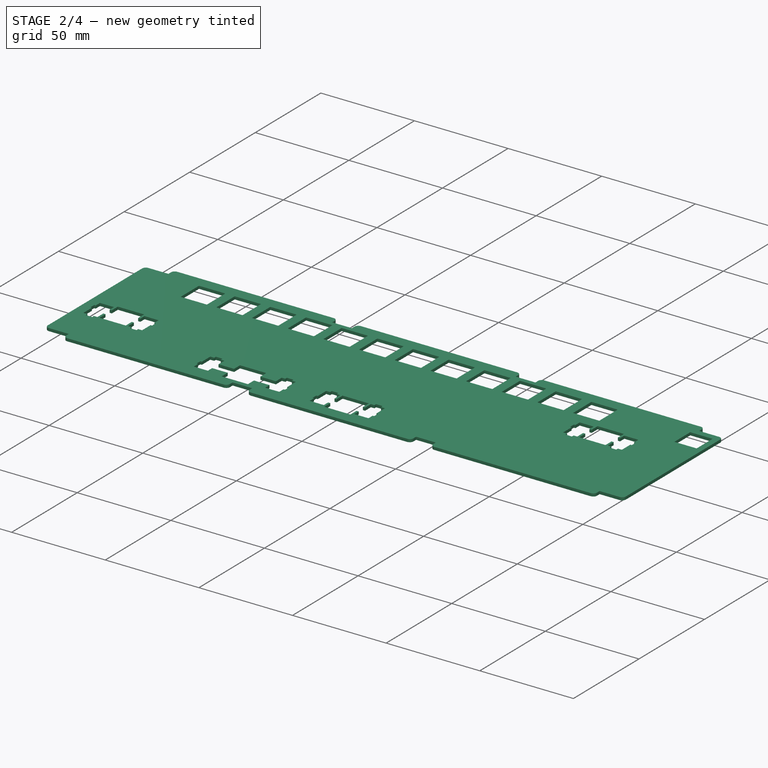
[diagram: stage 2 of 4 — iso view after this stage's code; geometry added in this stage tinted green]
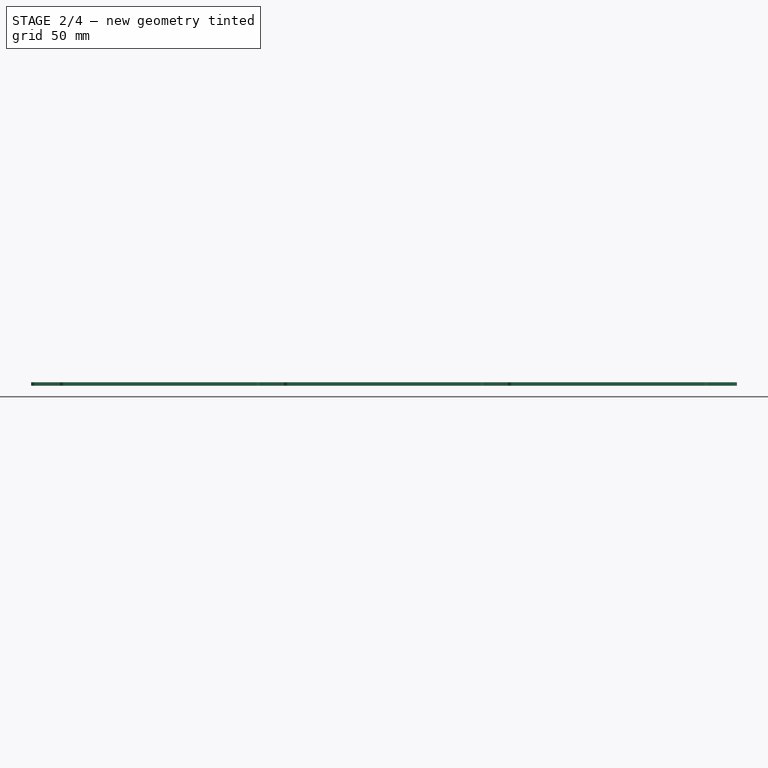
[diagram: stage 2 of 4 — front view after this stage's code; geometry added in this stage tinted green]
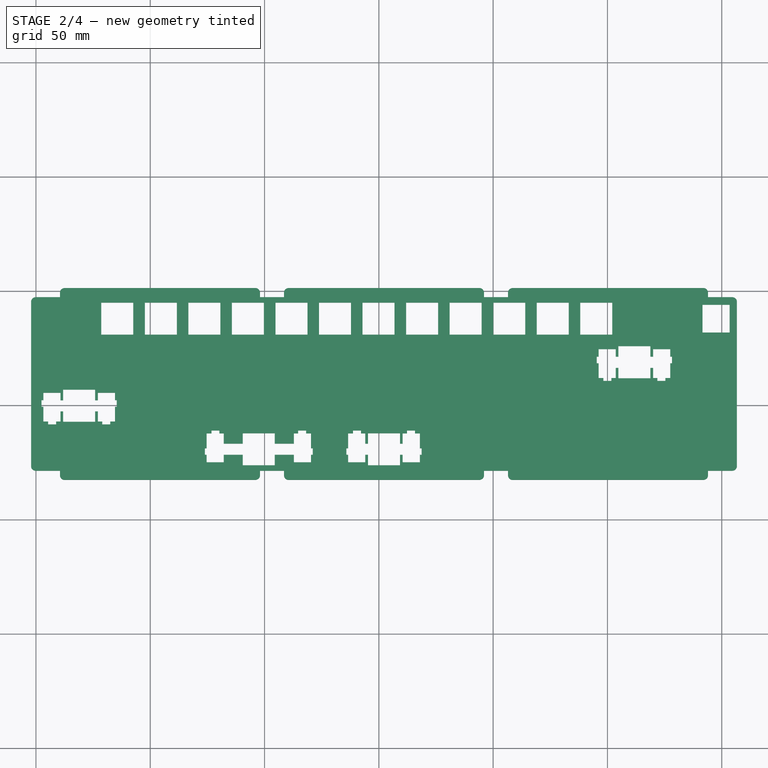
[diagram: stage 2 of 4 — top view after this stage's code; geometry added in this stage tinted green]
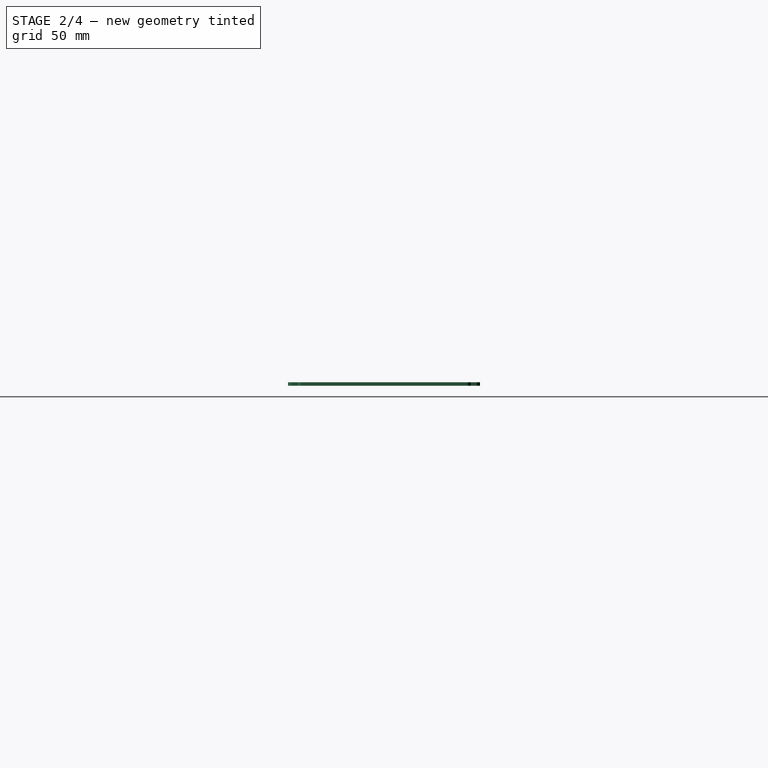
[diagram: stage 2 of 4 — right view after this stage's code; geometry added in this stage tinted green]
FEATURE [PartDesign::Pocket] Pocket003
  BaseFeature = -> Pocket002
  Direction = (0,0,-1)
  Length = 0
  Length2 = 100
  Profile = -> Sketch071
  ReferenceAxis = -> Sketch071 [N_Axis]
  Reversed = true
  Type = 1
FEATURE [PartDesign::Pocket] Pocket004
  BaseFeature = -> Pocket003
  Direction = (0,0,-1)
  Length = 0
  Length2 = 100
  Profile = -> Sketch072
  ReferenceAxis = -> Sketch072 [N_Axis]
  Reversed = true
  Type = 1
FEATURE [PartDesign::Pocket] Pocket007
  BaseFeature = -> Pocket004
  Direction = (0,0,-1)
  Length = 0
  Length2 = 100
  Profile = -> Sketch084
  ReferenceAxis = -> Sketch084 [N_Axis]
  Reversed = true
  Type = 1
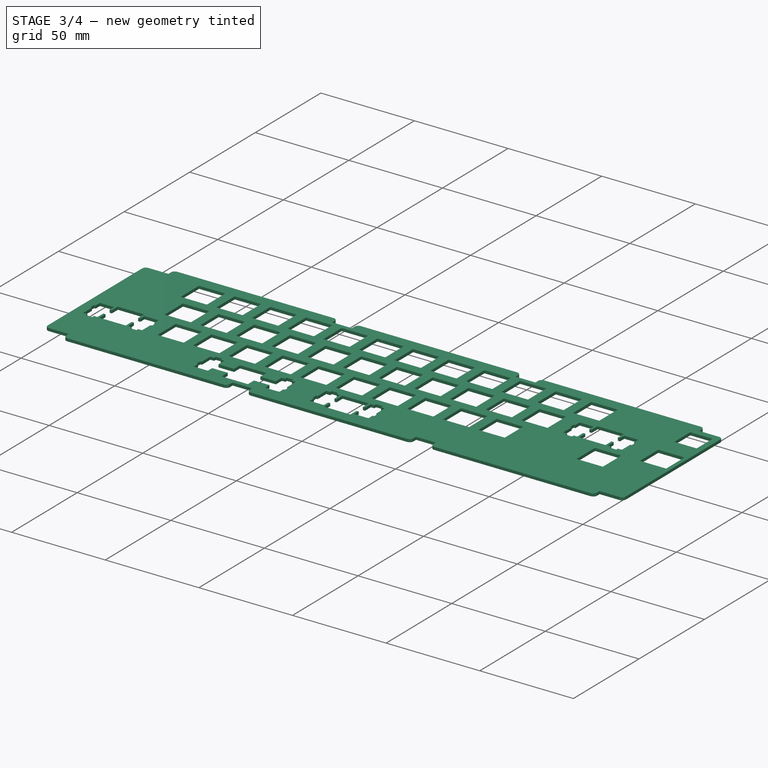
[diagram: stage 3 of 4 — iso view after this stage's code; geometry added in this stage tinted green]
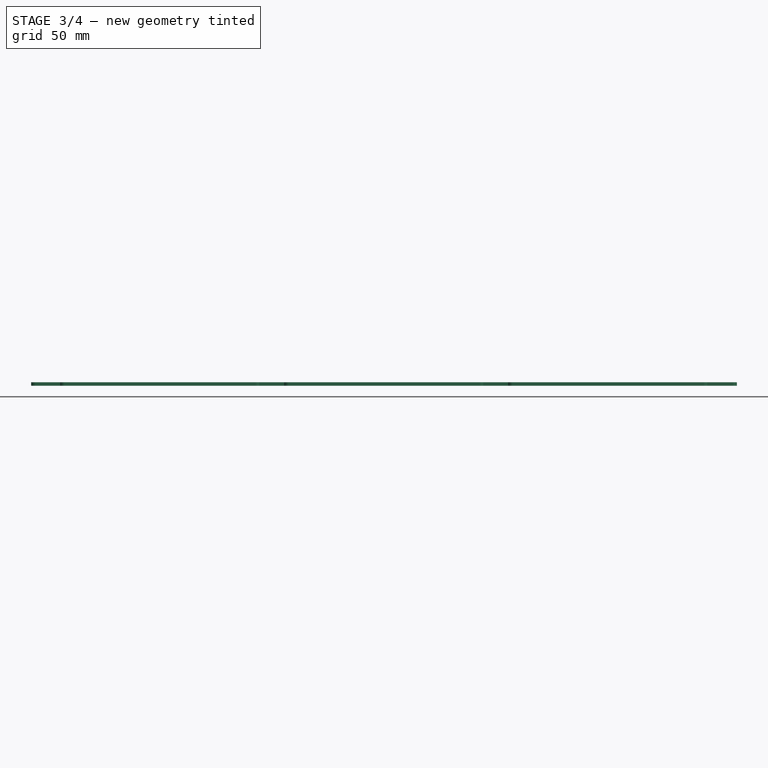
[diagram: stage 3 of 4 — front view after this stage's code; geometry added in this stage tinted green]
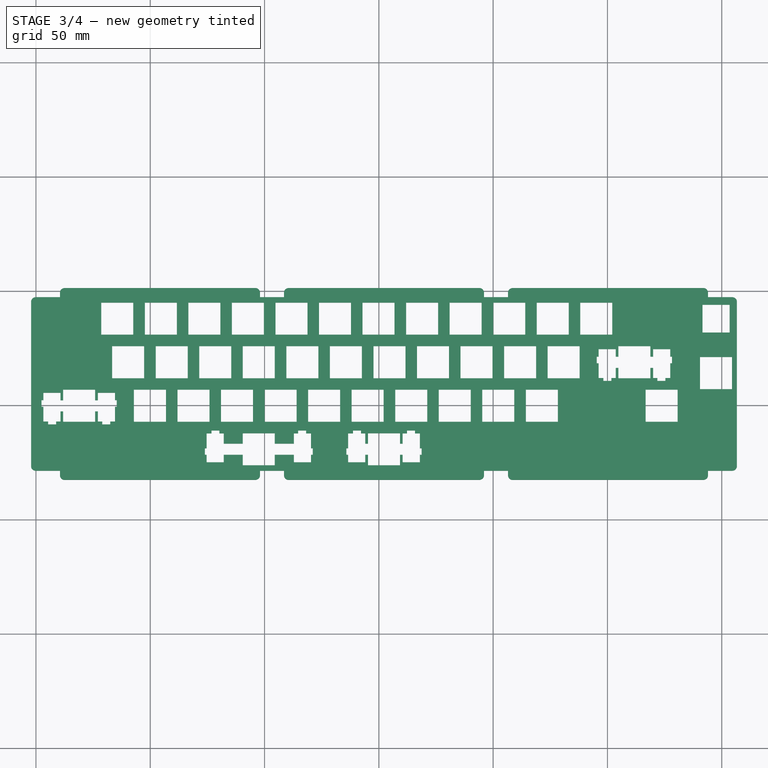
[diagram: stage 3 of 4 — top view after this stage's code; geometry added in this stage tinted green]
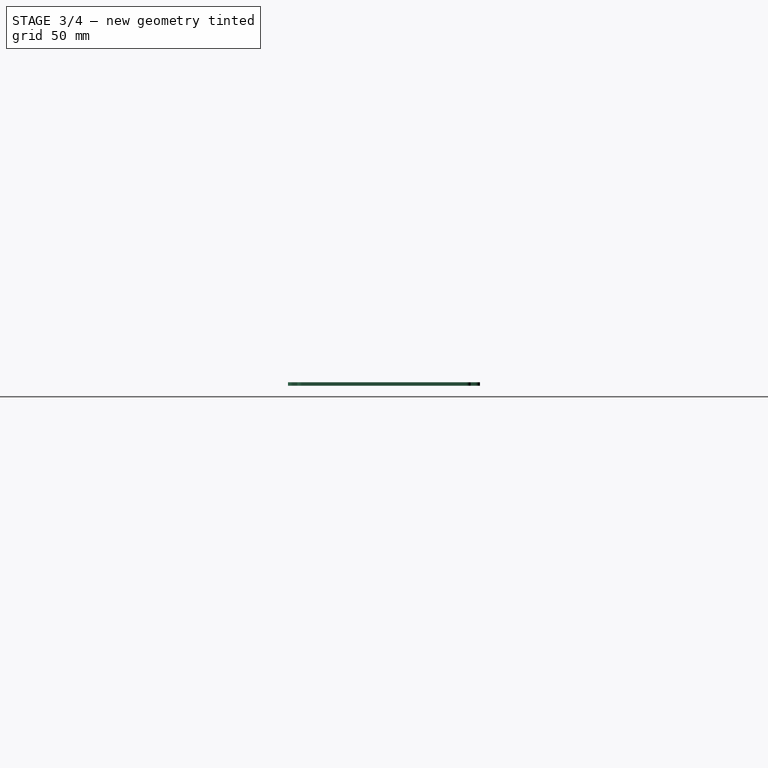
[diagram: stage 3 of 4 — right view after this stage's code; geometry added in this stage tinted green]
FEATURE [PartDesign::Pocket] Pocket008
  BaseFeature = -> Pocket007
  Direction = (0,0,-1)
  Length = 0
  Length2 = 100
  Profile = -> Sketch085
  ReferenceAxis = -> Sketch085 [N_Axis]
  Reversed = true
  Type = 1
FEATURE [PartDesign::Pocket] Pocket009
  BaseFeature = -> Pocket008
  Direction = (0,0,-1)
  Length = 0
  Length2 = 100
  Profile = -> Sketch086
  ReferenceAxis = -> Sketch086 [N_Axis]
  Reversed = true
  Type = 1
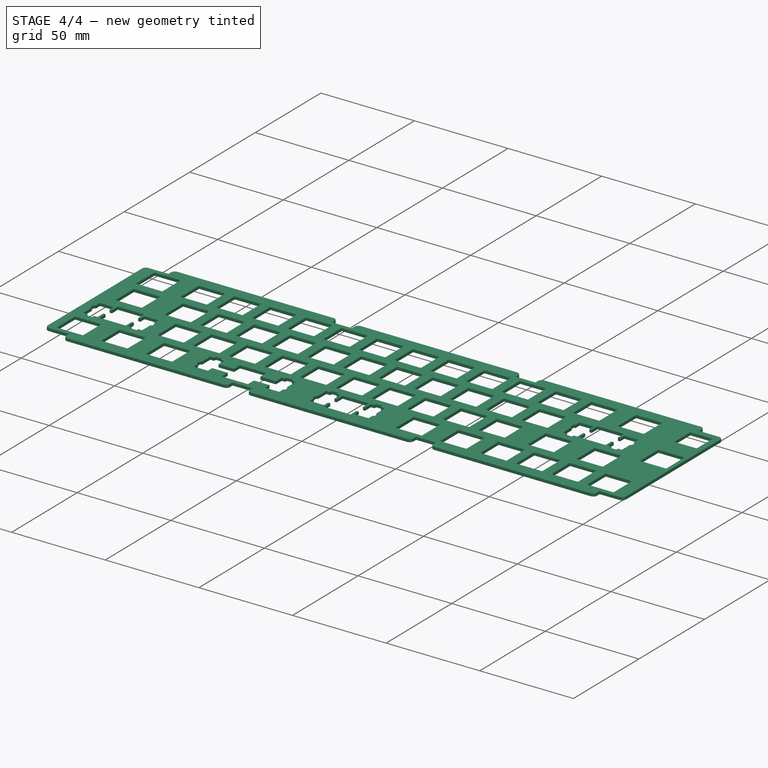
[diagram: stage 4 of 4 — iso view after this stage's code; geometry added in this stage tinted green]
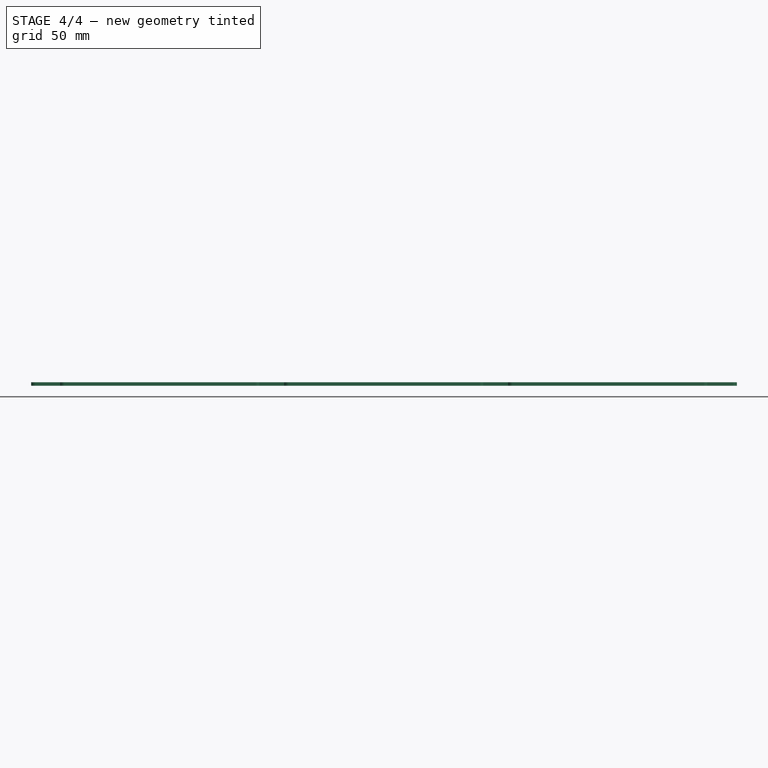
[diagram: stage 4 of 4 — front view after this stage's code; geometry added in this stage tinted green]
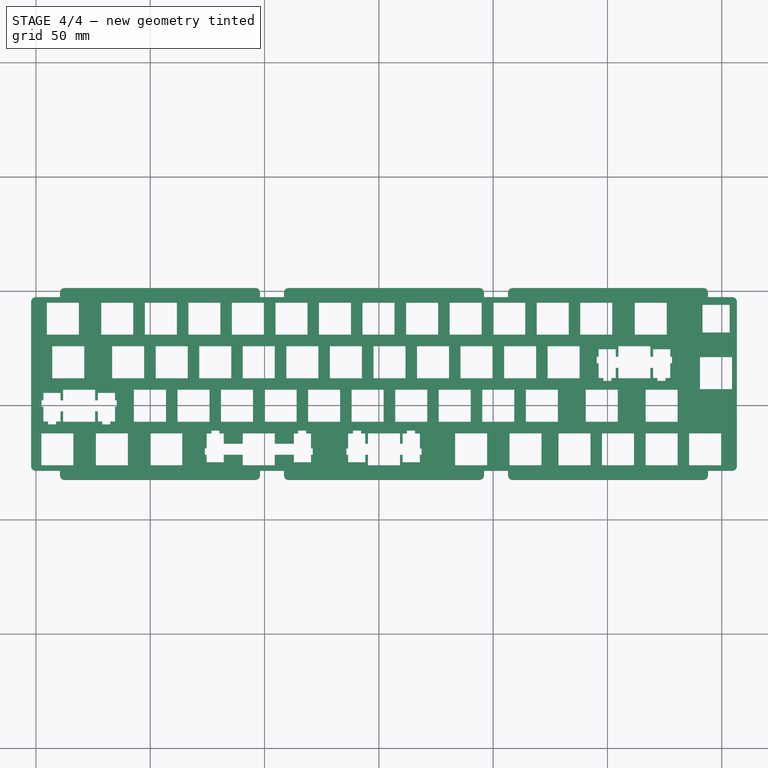
[diagram: stage 4 of 4 — top view after this stage's code; geometry added in this stage tinted green]
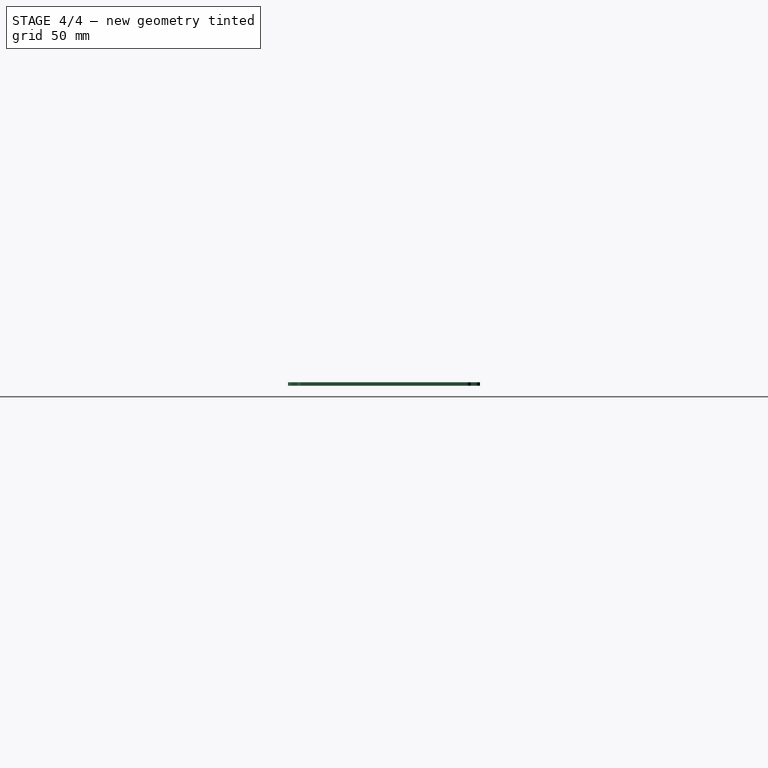
[diagram: stage 4 of 4 — right view after this stage's code; geometry added in this stage tinted green]
FEATURE [PartDesign::Pocket] Pocket010
  BaseFeature = -> Pocket009
  Direction = (0,0,-1)
  Length = 0
  Length2 = 100
  Profile = -> Sketch087
  ReferenceAxis = -> Sketch087 [N_Axis]
  Reversed = true
  Type = 1
FEATURE [PartDesign::Pocket] Pocket011
  BaseFeature = -> Pocket010
  Direction = (0,0,-1)
  Length = 0
  Length2 = 100
  Profile = -> Sketch088
  ReferenceAxis = -> Sketch088 [N_Axis]
  Reversed = true
  Type = 1
FEATURE [PartDesign::Pocket] Pocket012
  BaseFeature = -> Pocket011
  Direction = (0,0,-1)
  Length = 0
  Length2 = 100
  Midplane = true
  Profile = -> Sketch089
  ReferenceAxis = -> Sketch089 [N_Axis]
  Type = 1
FEATURE [PartDesign::Body] Body
  Group = -> [Sketch,Sketch001,Sketch002,Sketch050,Sketch052,Sketch071,Sketch072,Sketch084,Sketch085,Sketch086,Sketch087,Sketch088,Sketch089,Pad,Pocket001,Pocket002,Pocket003,Pocket004,Pocket007,Pocket008,Pocket009,Pocket010,Pocket011,Pocket012]
  Origin = -> Origin
  Tip = -> Pocket012
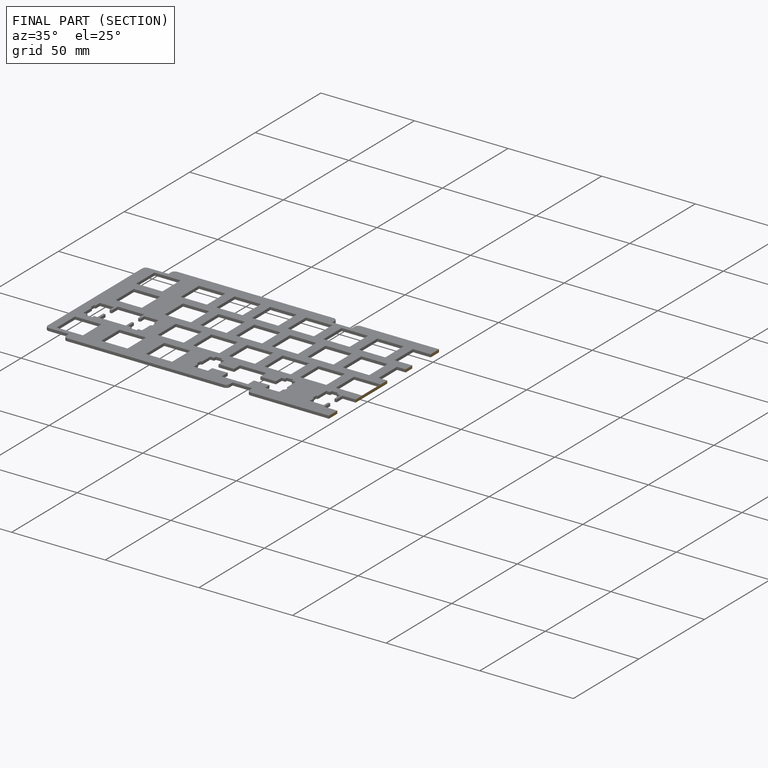
[diagram: finished part — half-section view (interior)]
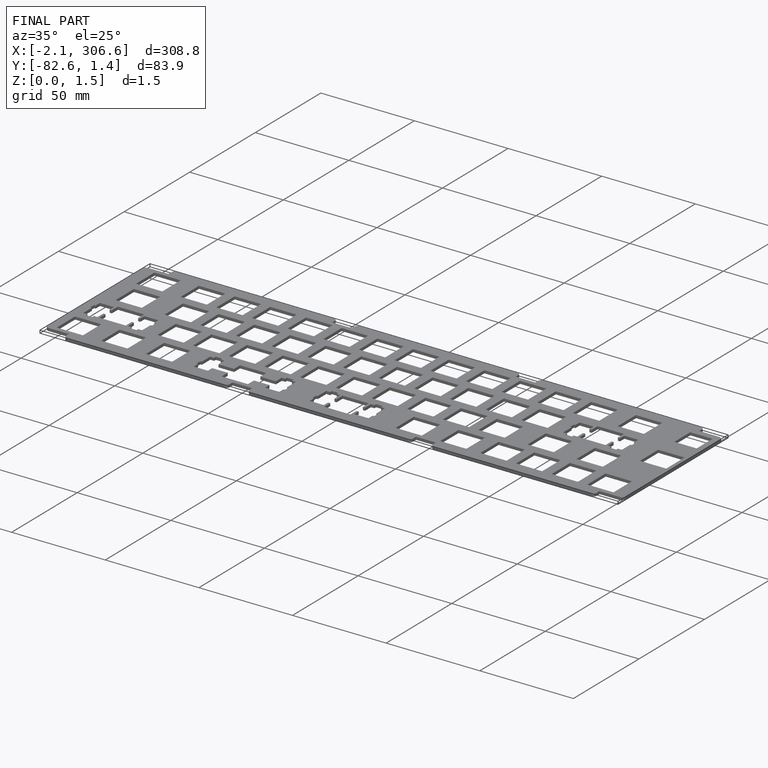
[diagram: finished part — iso view with bounding-box wireframe]
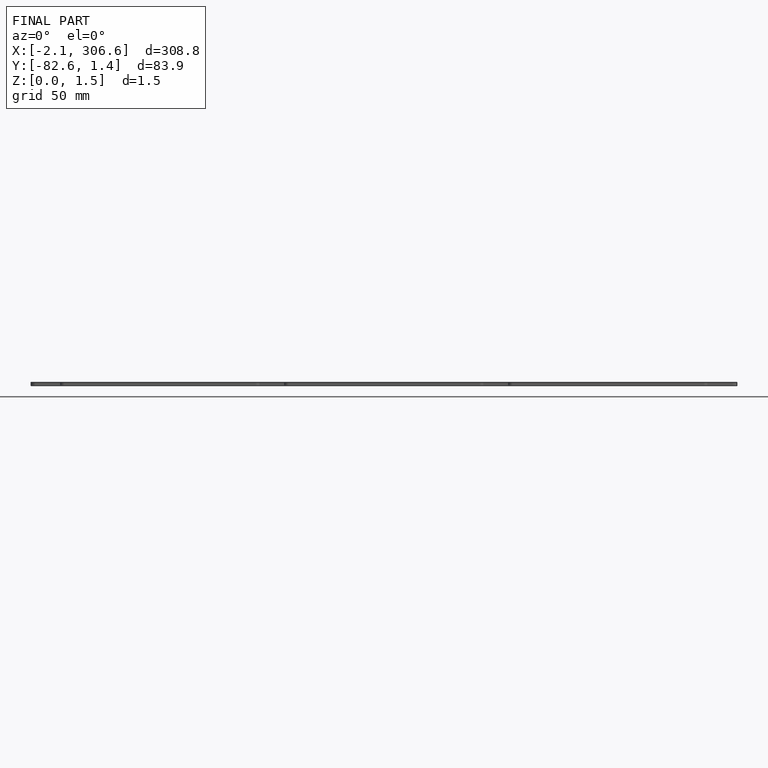
[diagram: finished part — front view with bounding-box wireframe]
